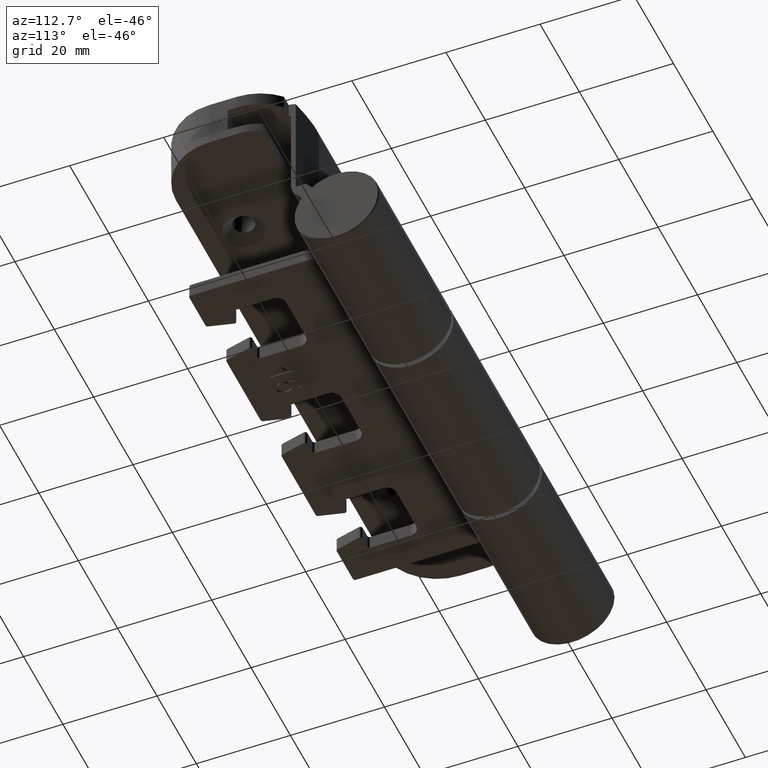
[diagram: clean part render]
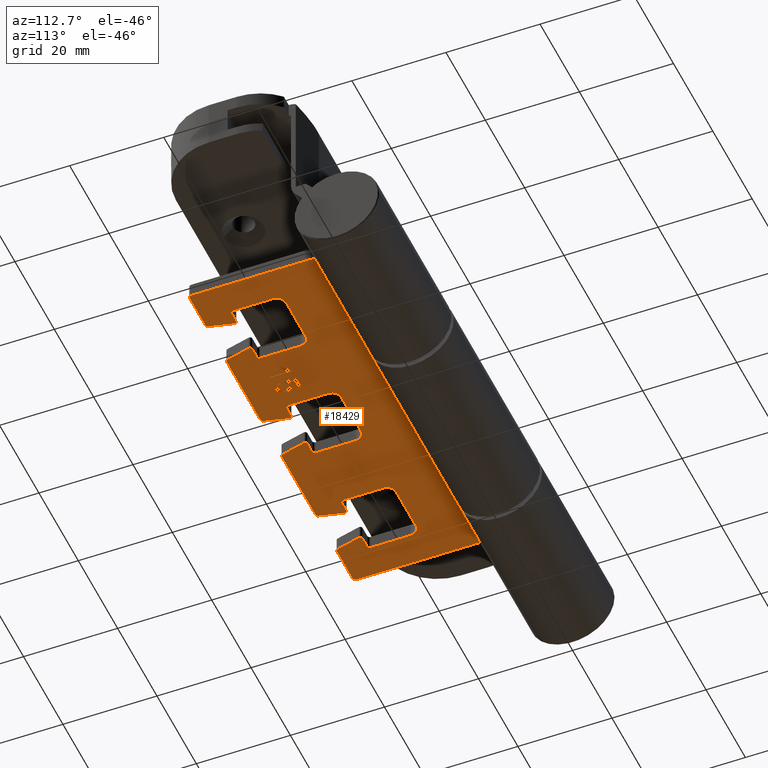
[diagram: same view with one face highlighted and labeled with its STEP entity id]
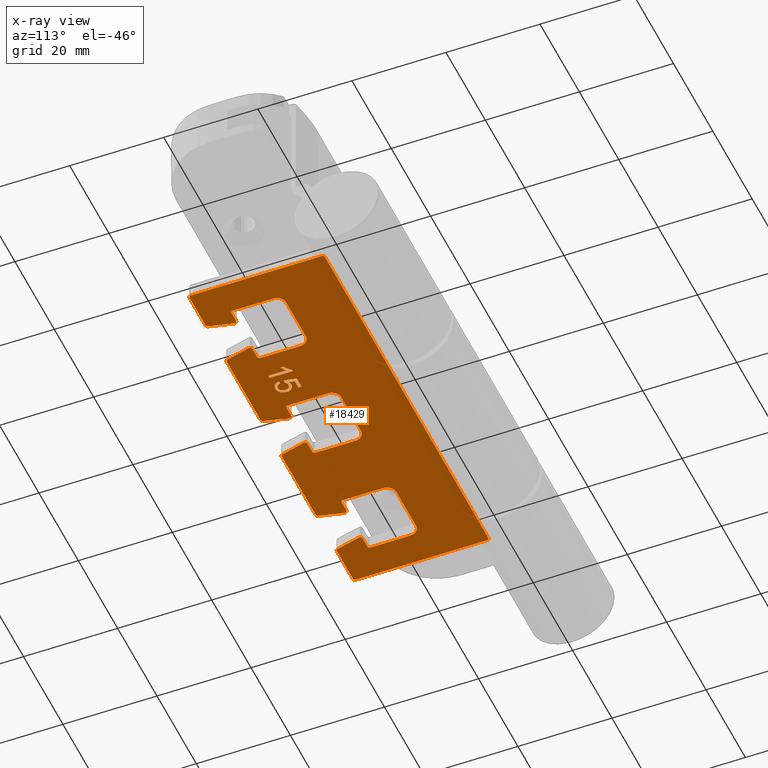
[diagram: x-ray of the same camera — body ghosted, the highlighted face saturated]
A machine part, auxiliary view. The second image highlights one B-rep face of the part: STEP entity #18429.
The next image is the same camera in x-ray: the body ghosted, the highlighted face saturated — about 9% of this face is hidden behind the body in this view.
In plain terms, the highlighted planar face has unit normal (-0, 0, -1).
Its self-contained STEP definition (entity closure, byte-faithful):
#16 = DIRECTION ( 'NONE',  ( 3.330669073875506106E-16, -1.645520264221267495E-30, -1.000000000000000000 ) ) ;
#81 = DIRECTION ( 'NONE',  ( 6.021711508592039734E-17, 1.000000000000000000, 1.613137984283720811E-30 ) ) ;
#97 = CIRCLE ( 'NONE', #8790, 2.000000000000001776 ) ;
#119 = CARTESIAN_POINT ( 'NONE',  ( -30.97893695662481761, -6.999999999999999112, -11.14997987979132077 ) ) ;
#131 = DIRECTION ( 'NONE',  ( -1.000000000000000000, 0.000000000000000000, 0.000000000000000000 ) ) ;
#169 = ORIENTED_EDGE ( 'NONE', *, *, #7456, .T. ) ;
#216 = LINE ( 'NONE', #9193, #3988 ) ;
#227 = EDGE_CURVE ( 'NONE', #5664, #19765, #3516, .T. ) ;
#285 = DIRECTION ( 'NONE',  ( -6.902532920683849794E-31, 1.000000000000000000, 1.645520264221267145E-30 ) ) ;
#301 = CARTESIAN_POINT ( 'NONE',  ( -31.11343962867249502, -6.999999999999999112, -10.47832277126347300 ) ) ;
#351 = FACE_BOUND ( 'NONE', #6723, .T. ) ;
#362 = EDGE_CURVE ( 'NONE', #3391, #8185, #7534, .T. ) ;
#370 = DIRECTION ( 'NONE',  ( -6.021711508592039734E-17, -1.000000000000000000, -1.613137984283720811E-30 ) ) ;
#374 = CARTESIAN_POINT ( 'NONE',  ( -10.69218558541689923, -6.999999999999995559, 42.00000000000000000 ) ) ;
#382 = CARTESIAN_POINT ( 'NONE',  ( -28.70512820512822216, -6.999999999999999112, -10.73076923076921219 ) ) ;
#393 = VECTOR ( 'NONE', #15632, 1000.000000000000000 ) ;
#422 = CIRCLE ( 'NONE', #12012, 1.999999999999998224 ) ;
#441 = CARTESIAN_POINT ( 'NONE',  ( -29.82175885136289750, -6.999999999999999112, -17.03028914929162596 ) ) ;
#442 = VECTOR ( 'NONE', #830, 1000.000000000000114 ) ;
#490 = ORIENTED_EDGE ( 'NONE', *, *, #11151, .T. ) ;
#538 = VERTEX_POINT ( 'NONE', #15820 ) ;
#549 = CARTESIAN_POINT ( 'NONE',  ( -32.50000000000002132, -6.999999999999999112, -6.499999999999984013 ) ) ;
#574 = DIRECTION ( 'NONE',  ( 6.021711508592039734E-17, 1.000000000000000000, 1.613137984283720811E-30 ) ) ;
#584 = CARTESIAN_POINT ( 'NONE',  ( -30.69230769230770761, -6.999999999999999112, -12.97435897435895846 ) ) ;
#585 = CARTESIAN_POINT ( 'NONE',  ( -23.99999999999999645, -6.999999999999999112, -22.99999999999997513 ) ) ;
#629 = VERTEX_POINT ( 'NONE', #18945 ) ;
#648 = DIRECTION ( 'NONE',  ( 0.000000000000000000, 0.000000000000000000, 1.000000000000000000 ) ) ;
#655 = ORIENTED_EDGE ( 'NONE', *, *, #8022, .T. ) ;
#731 = CARTESIAN_POINT ( 'NONE',  ( -30.69230769230770761, -6.999999999999999112, -12.97435897435895846 ) ) ;
#740 = VECTOR ( 'NONE', #10314, 1000.000000000000000 ) ;
#749 = DIRECTION ( 'NONE',  ( -1.000000000000000000, 0.000000000000000000, 0.000000000000000000 ) ) ;
#757 = EDGE_CURVE ( 'NONE', #1844, #14669, #8141, .T. ) ;
#761 = CARTESIAN_POINT ( 'NONE',  ( -33.00000000000001421, -6.999999999999999112, -4.140388203202189032 ) ) ;
#829 = DIRECTION ( 'NONE',  ( 3.330669073875505120E-16, -1.645520264221267145E-30, -1.000000000000000000 ) ) ;
#830 = DIRECTION ( 'NONE',  ( 0.09950371902099794386, -1.700981326882806705E-30, -0.9950371902099892640 ) ) ;
#841 = CARTESIAN_POINT ( 'NONE',  ( -32.47057936608320716, -6.999999999999999112, -13.39060331529400649 ) ) ;
#848 = CARTESIAN_POINT ( 'NONE',  ( -39.00000000000001421, -7.000000000000002665, -5.390388203202165940 ) ) ;
#854 = VERTEX_POINT ( 'NONE', #14999 ) ;
#879 = VERTEX_POINT ( 'NONE', #8831 ) ;
#932 = CARTESIAN_POINT ( 'NONE',  ( -32.35346654311189951, -6.999999999999999112, -13.46710373877462175 ) ) ;
#940 = CARTESIAN_POINT ( 'NONE',  ( -10.19218558541689212, -6.999999999999999112, 42.00000000000000000 ) ) ;
#944 = CARTESIAN_POINT ( 'NONE',  ( -39.00000000000003553, -7.000000000000002665, 33.00000000000002842 ) ) ;
#970 = DIRECTION ( 'NONE',  ( 1.000000000000000000, -6.902532920683849794E-31, -3.330669073875503641E-16 ) ) ;
#1013 = VERTEX_POINT ( 'NONE', #17213 ) ;
#1027 = EDGE_CURVE ( 'NONE', #16103, #7131, #8015, .T. ) ;
#1061 = EDGE_CURVE ( 'NONE', #10197, #11346, #13086, .T. ) ;
#1126 = CARTESIAN_POINT ( 'NONE',  ( -32.84875976700715228, -7.000000000000002665, -12.98016792496480143 ) ) ;
#1131 = DIRECTION ( 'NONE',  ( 1.000000000000000000, -6.021711508592166691E-17, -3.330669073875503641E-16 ) ) ;
#1132 = CARTESIAN_POINT ( 'NONE',  ( -30.01350678329112398, -7.000000000000006217, -11.00544532033786282 ) ) ;
#1190 = CARTESIAN_POINT ( 'NONE',  ( -32.48438914901623065, -6.999999999999999112, -12.21401810135373722 ) ) ;
#1193 = EDGE_CURVE ( 'NONE', #4530, #19572, #8512, .T. ) ;
#1215 = EDGE_CURVE ( 'NONE', #854, #629, #10021, .T. ) ;
#1348 = EDGE_CURVE ( 'NONE', #11346, #2965, #18084, .T. ) ;
#1396 = CIRCLE ( 'NONE', #12342, 0.5000000000000004441 ) ;
#1403 = AXIS2_PLACEMENT_3D ( 'NONE', #14826, #7245, #13394 ) ;
#1484 = CARTESIAN_POINT ( 'NONE',  ( -21.99999999999999645, -6.999999999999999112, -22.99999999999996803 ) ) ;
#1509 = LINE ( 'NONE', #7666, #6096 ) ;
#1523 = CARTESIAN_POINT ( 'NONE',  ( -30.24470424939990210, -7.000000000000002665, -12.07890063599212027 ) ) ;
#1553 = VECTOR ( 'NONE', #17703, 1000.000000000000114 ) ;
#1618 = VERTEX_POINT ( 'NONE', #6785 ) ;
#1658 = ORIENTED_EDGE ( 'NONE', *, *, #17589, .T. ) ;
#1661 = CARTESIAN_POINT ( 'NONE',  ( -33.00000000000000711, -6.999999999999999112, 21.50000000000001421 ) ) ;
#1666 = CARTESIAN_POINT ( 'NONE',  ( -38.99999999999999289, -7.000000000000002665, -41.49999999999995026 ) ) ;
#1673 = EDGE_CURVE ( 'NONE', #12849, #6817, #10104, .T. ) ;
#1712 = CARTESIAN_POINT ( 'NONE',  ( -28.70512820512821506, -6.999999999999999112, -12.57872596153844391 ) ) ;
#1727 = CARTESIAN_POINT ( 'NONE',  ( -31.08761256005971774, -6.999999999999999112, -11.12962077480178280 ) ) ;
#1739 = VERTEX_POINT ( 'NONE', #18446 ) ;
#1766 = VERTEX_POINT ( 'NONE', #9355 ) ;
#1781 = CARTESIAN_POINT ( 'NONE',  ( -32.91491661556337789, -7.000000000000006217, -11.40580112823830738 ) ) ;
#1788 = EDGE_CURVE ( 'NONE', #5664, #5357, #13711, .T. ) ;
#1816 = LINE ( 'NONE', #12508, #6541 ) ;
#1821 = ORIENTED_EDGE ( 'NONE', *, *, #8154, .T. ) ;
#1844 = VERTEX_POINT ( 'NONE', #4915 ) ;
#1845 = CARTESIAN_POINT ( 'NONE',  ( -29.74818269428124040, -7.000000000000002665, -12.39975888316808472 ) ) ;
#1904 = DIRECTION ( 'NONE',  ( -1.000000000000000000, 0.000000000000000000, 0.000000000000000000 ) ) ;
#1916 = VERTEX_POINT ( 'NONE', #3495 ) ;
#1944 = DIRECTION ( 'NONE',  ( -3.330669073875506106E-16, 1.645520264221267495E-30, 1.000000000000000000 ) ) ;
#1995 = CARTESIAN_POINT ( 'NONE',  ( -31.65384615384616396, -7.000000000000006217, -13.67948717948715931 ) ) ;
#1998 = DIRECTION ( 'NONE',  ( -3.330669073875506106E-16, 1.645520264221267495E-30, 1.000000000000000000 ) ) ;
#2043 = CARTESIAN_POINT ( 'NONE',  ( -29.66921810054526532, -6.999999999999999112, -12.05774451979281459 ) ) ;
#2058 = DIRECTION ( 'NONE',  ( -1.000000000000000000, 0.000000000000000000, 0.000000000000000000 ) ) ;
#2137 = CARTESIAN_POINT ( 'NONE',  ( -29.66666666666668206, -7.000000000000002665, -11.94170673076921751 ) ) ;
#2143 = CARTESIAN_POINT ( 'NONE',  ( -33.06301101071603910, -7.000000000000002665, -12.17980866830898812 ) ) ;
#2146 = DIRECTION ( 'NONE',  ( 3.330669073875506106E-16, -1.645520264221267495E-30, -1.000000000000000000 ) ) ;
#2163 = LINE ( 'NONE', #14399, #15066 ) ;
#2166 = VERTEX_POINT ( 'NONE', #12349 ) ;
#2170 = AXIS2_PLACEMENT_3D ( 'NONE', #14267, #14572, #12635 ) ;
#2186 = CARTESIAN_POINT ( 'NONE',  ( -39.00000000000003553, -7.000000000000002665, 41.50000000000002132 ) ) ;
#2250 = CARTESIAN_POINT ( 'NONE',  ( -33.49999999999998579, -6.999999999999999112, -32.14038820320218548 ) ) ;
#2309 = ORIENTED_EDGE ( 'NONE', *, *, #10554, .F. ) ;
#2348 = CARTESIAN_POINT ( 'NONE',  ( -39.00000000000001421, -7.000000000000002665, 5.000000000000022204 ) ) ;
#2376 = CARTESIAN_POINT ( 'NONE',  ( -10.19218558541684061, -6.999999999999999112, -41.49999999999997158 ) ) ;
#2381 = CARTESIAN_POINT ( 'NONE',  ( -38.50000000000000711, -7.000000000000006217, -22.60961179679775768 ) ) ;
#2382 = DIRECTION ( 'NONE',  ( -1.000000000000000000, 0.000000000000000000, 0.000000000000000000 ) ) ;
#2385 = ORIENTED_EDGE ( 'NONE', *, *, #4493, .T. ) ;
#2388 = DIRECTION ( 'NONE',  ( 1.000000000000000000, -6.902532920683851546E-31, -3.330669073875510050E-16 ) ) ;
#2397 = VERTEX_POINT ( 'NONE', #848 ) ;
#2398 = CARTESIAN_POINT ( 'NONE',  ( -10.69218558541686903, -7.000000000000002665, -41.50000000000000000 ) ) ;
#2432 = VECTOR ( 'NONE', #1944, 1000.000000000000000 ) ;
#2448 = DIRECTION ( 'NONE',  ( -6.902532920683849794E-31, 1.000000000000000000, 1.645520264221267145E-30 ) ) ;
#2452 = DIRECTION ( 'NONE',  ( -3.330669073875505120E-16, 1.645520264221267145E-30, 1.000000000000000000 ) ) ;
#2474 = CARTESIAN_POINT ( 'NONE',  ( -32.16921199995928760, -7.000000000000002665, -11.38228494697351145 ) ) ;
#2484 = LINE ( 'NONE', #11265, #8703 ) ;
#2511 = AXIS2_PLACEMENT_3D ( 'NONE', #13083, #16223, #2382 ) ;
#2514 = EDGE_CURVE ( 'NONE', #19676, #15426, #15035, .T. ) ;
#2561 = CARTESIAN_POINT ( 'NONE',  ( -32.50000000000000711, -6.999999999999999112, -34.99999999999997868 ) ) ;
#2570 = CARTESIAN_POINT ( 'NONE',  ( -31.32331730769232081, -6.999999999999999112, -11.11538461538459721 ) ) ;
#2577 = LINE ( 'NONE', #13087, #2762 ) ;
#2598 = CARTESIAN_POINT ( 'NONE',  ( -32.26253413349047605, -6.999999999999999112, -12.73935925944263836 ) ) ;
#2643 = CARTESIAN_POINT ( 'NONE',  ( -29.92066590491864275, -7.000000000000002665, -11.12101834534367839 ) ) ;
#2762 = VECTOR ( 'NONE', #9858, 1000.000000000000114 ) ;
#2782 = CARTESIAN_POINT ( 'NONE',  ( -31.61172578892048435, -7.000000000000006217, -10.49622929089949963 ) ) ;
#2812 = ORIENTED_EDGE ( 'NONE', *, *, #2514, .T. ) ;
#2819 = CIRCLE ( 'NONE', #9609, 0.5000000000000004441 ) ;
#2964 = DIRECTION ( 'NONE',  ( -3.330669073875506106E-16, 1.645520264221267495E-30, 1.000000000000000000 ) ) ;
#2965 = VERTEX_POINT ( 'NONE', #4230 ) ;
#2984 = VECTOR ( 'NONE', #11822, 1000.000000000000000 ) ;
#3032 = EDGE_CURVE ( 'NONE', #13238, #5643, #8276, .T. ) ;
#3071 = ORIENTED_EDGE ( 'NONE', *, *, #9495, .T. ) ;
#3088 = AXIS2_PLACEMENT_3D ( 'NONE', #4343, #16767, #10495 ) ;
#3104 = VECTOR ( 'NONE', #5180, 1000.000000000000000 ) ;
#3148 = CARTESIAN_POINT ( 'NONE',  ( -29.25000000000000711, -7.000000000000002665, -17.07692307692304468 ) ) ;
#3190 = CARTESIAN_POINT ( 'NONE',  ( -39.00000000000003553, -7.000000000000002665, 22.60961179679783228 ) ) ;
#3206 = VERTEX_POINT ( 'NONE', #13106 ) ;
#3209 = CARTESIAN_POINT ( 'NONE',  ( -38.62126781251819807, -6.999999999999999112, 23.09468304687048956 ) ) ;
#3248 = ORIENTED_EDGE ( 'NONE', *, *, #12112, .T. ) ;
#3269 = VERTEX_POINT ( 'NONE', #13491 ) ;
#3272 = CARTESIAN_POINT ( 'NONE',  ( -39.00000000000003553, -7.000000000000002665, 42.00000000000002132 ) ) ;
#3288 = CARTESIAN_POINT ( 'NONE',  ( -21.99999999999999289, -6.999999999999999112, -32.99999999999995737 ) ) ;
#3341 = VERTEX_POINT ( 'NONE', #4610 ) ;
#3356 = CIRCLE ( 'NONE', #12368, 1.999999999999998224 ) ;
#3358 = VERTEX_POINT ( 'NONE', #1484 ) ;
#3362 = CARTESIAN_POINT ( 'NONE',  ( -29.84094551282052521, -6.999999999999999112, -17.07692307692304468 ) ) ;
#3391 = VERTEX_POINT ( 'NONE', #3190 ) ;
#3408 = EDGE_CURVE ( 'NONE', #3358, #17753, #9453, .T. ) ;
#3439 = VERTEX_POINT ( 'NONE', #15822 ) ;
#3478 = DIRECTION ( 'NONE',  ( 6.021711508592165459E-17, 1.000000000000000000, 1.613137984283720461E-30 ) ) ;
#3495 = CARTESIAN_POINT ( 'NONE',  ( -33.50000000000001421, -7.000000000000002665, -3.640388203202186368 ) ) ;
#3512 = B_SPLINE_CURVE_WITH_KNOTS ( 'NONE', 3,
 ( #18649, #4818, #17045, #8042, #11069, #1781, #3593, #18745, #12576, #6641, #8147 ),
 .UNSPECIFIED., .F., .F.,
 ( 4, 1, 1, 1, 1, 1, 1, 1, 4 ),
 ( 0.000000000000000000, 0.1278926194654210480, 0.2515785135038584031, 0.3727928197023028245, 0.4927776986078535315, 0.6135900692425720893, 0.7378086492801454455, 0.8661799015391674628, 1.000000000000000000 ),
 .UNSPECIFIED. ) ;
#3516 = LINE ( 'NONE', #11384, #3644 ) ;
#3551 = VERTEX_POINT ( 'NONE', #2376 ) ;
#3593 = CARTESIAN_POINT ( 'NONE',  ( -32.98351903824498521, -6.999999999999999112, -11.57035669669233080 ) ) ;
#3644 = VECTOR ( 'NONE', #1998, 1000.000000000000000 ) ;
#3649 = AXIS2_PLACEMENT_3D ( 'NONE', #16305, #10030, #5398 ) ;
#3669 = CARTESIAN_POINT ( 'NONE',  ( -28.00000000000000711, -6.999999999999999112, -15.69471153846152234 ) ) ;
#3685 = DIRECTION ( 'NONE',  ( -1.000000000000000000, 0.000000000000000000, 0.000000000000000000 ) ) ;
#3696 = CARTESIAN_POINT ( 'NONE',  ( -33.62126781251817675, -7.000000000000006217, -24.34468304687043627 ) ) ;
#3725 = CARTESIAN_POINT ( 'NONE',  ( -31.28525641025641590, -6.999999999999999112, -10.47435897435895669 ) ) ;
#3752 = VERTEX_POINT ( 'NONE', #6507 ) ;
#3771 = LINE ( 'NONE', #5682, #10256 ) ;
#3869 = ORIENTED_EDGE ( 'NONE', *, *, #6004, .F. ) ;
#3903 = DIRECTION ( 'NONE',  ( 6.021711508592039734E-17, 1.000000000000000000, 1.613137984283720811E-30 ) ) ;
#3919 = CARTESIAN_POINT ( 'NONE',  ( -39.00000000000003553, -7.000000000000002665, 33.39038820320224943 ) ) ;
#3935 = CARTESIAN_POINT ( 'NONE',  ( -30.24796574974075014, -7.000000000000002665, -12.26474656507636318 ) ) ;
#3986 = CARTESIAN_POINT ( 'NONE',  ( -31.44983602334466966, -6.999999999999999112, -11.11729977022183746 ) ) ;
#3988 = VECTOR ( 'NONE', #10801, 1000.000000000000114 ) ;
#4066 = LINE ( 'NONE', #14582, #14275 ) ;
#4089 = CARTESIAN_POINT ( 'NONE',  ( -32.36526151962631559, -7.000000000000002665, -11.61205032363476874 ) ) ;
#4113 = B_SPLINE_CURVE_WITH_KNOTS ( 'NONE', 3,
 ( #16564, #18566, #5844, #4334, #13713, #8874, #10682, #4733, #5944, #18270, #16661 ),
 .UNSPECIFIED., .F., .F.,
 ( 4, 1, 1, 1, 1, 1, 1, 1, 4 ),
 ( 0.000000000000000000, 0.1426572507006144686, 0.2811689939054440313, 0.4169771923679749803, 0.5508524927475570987, 0.6783641702618110614, 0.7950324430070948578, 0.9019981783473517423, 1.000000000000000000 ),
 .UNSPECIFIED. ) ;
#4137 = CARTESIAN_POINT ( 'NONE',  ( -30.51024125653205843, -7.000000000000002665, -12.82729785831652869 ) ) ;
#4161 = CIRCLE ( 'NONE', #15466, 0.5000000000000004441 ) ;
#4201 = CARTESIAN_POINT ( 'NONE',  ( -38.50000000000000711, -7.000000000000006217, -33.39038820320217837 ) ) ;
#4230 = CARTESIAN_POINT ( 'NONE',  ( -32.50000000000002842, -6.999999999999999112, -6.999999999999984901 ) ) ;
#4240 = EDGE_CURVE ( 'NONE', #10424, #11802, #14438, .T. ) ;
#4264 = CARTESIAN_POINT ( 'NONE',  ( -30.23562158567390767, -7.000000000000006217, -10.79816520123474000 ) ) ;
#4295 = AXIS2_PLACEMENT_3D ( 'NONE', #19974, #17143, #7747 ) ;
#4312 = AXIS2_PLACEMENT_3D ( 'NONE', #18903, #5076, #131 ) ;
#4334 = CARTESIAN_POINT ( 'NONE',  ( -28.98701299261532327, -7.000000000000002665, -16.61589968163998066 ) ) ;
#4343 = CARTESIAN_POINT ( 'NONE',  ( -32.50000000000000711, -6.999999999999999112, 21.50000000000002487 ) ) ;
#4349 = VECTOR ( 'NONE', #12897, 1000.000000000000000 ) ;
#4351 = VERTEX_POINT ( 'NONE', #16250 ) ;
#4353 = VERTEX_POINT ( 'NONE', #19562 ) ;
#4354 = CARTESIAN_POINT ( 'NONE',  ( -30.24358974358975516, -7.000000000000002665, -12.11899038461536726 ) ) ;
#4362 = DIRECTION ( 'NONE',  ( 6.021711508592039734E-17, 1.000000000000000000, 1.613137984283720811E-30 ) ) ;
#4378 = CARTESIAN_POINT ( 'NONE',  ( -28.06410256410256920, -6.999999999999999112, -10.73076923076921751 ) ) ;
#4414 = LINE ( 'NONE', #5828, #17029 ) ;
#4419 = CARTESIAN_POINT ( 'NONE',  ( -31.89229419600756543, -7.000000000000002665, -12.96568611652896585 ) ) ;
#4421 = CIRCLE ( 'NONE', #7635, 0.5000000000000004441 ) ;
#4438 = DIRECTION ( 'NONE',  ( -0.9701425001453322094, 0.000000000000000000, -0.2425356250363315813 ) ) ;
#4462 = CARTESIAN_POINT ( 'NONE',  ( -31.28525641025641590, -6.999999999999999112, -10.47435897435895669 ) ) ;
#4493 = EDGE_CURVE ( 'NONE', #9266, #2166, #4414, .T. ) ;
#4511 = CARTESIAN_POINT ( 'NONE',  ( -38.62126781251819807, -6.999999999999999112, 32.90531695312957083 ) ) ;
#4530 = VERTEX_POINT ( 'NONE', #11260 ) ;
#4570 = CARTESIAN_POINT ( 'NONE',  ( -10.69218558541690101, -6.999999999999995559, 41.50000000000000000 ) ) ;
#4577 = VERTEX_POINT ( 'NONE', #6334 ) ;
#4610 = CARTESIAN_POINT ( 'NONE',  ( -30.62820512820513486, -7.000000000000006217, -13.61538461538460254 ) ) ;
#4632 = EDGE_CURVE ( 'NONE', #6817, #4353, #3512, .T. ) ;
#4722 = CARTESIAN_POINT ( 'NONE',  ( -38.50000000000001421, -6.999999999999999112, 5.390388203202230777 ) ) ;
#4733 = CARTESIAN_POINT ( 'NONE',  ( -28.33400128572749921, -7.000000000000002665, -15.90385719530127240 ) ) ;
#4789 = CARTESIAN_POINT ( 'NONE',  ( -33.00000000000000711, -6.999999999999999112, -34.99999999999997868 ) ) ;
#4818 = CARTESIAN_POINT ( 'NONE',  ( -32.50555888696052875, -6.999999999999999112, -10.89624771608633580 ) ) ;
#4846 = ORIENTED_EDGE ( 'NONE', *, *, #10664, .T. ) ;
#4856 = EDGE_CURVE ( 'NONE', #2397, #13878, #11203, .T. ) ;
#4874 = CARTESIAN_POINT ( 'NONE',  ( -29.66751956966086468, -7.000000000000002665, -11.98049628299987113 ) ) ;
#4899 = FACE_BOUND ( 'NONE', #7103, .T. ) ;
#4915 = CARTESIAN_POINT ( 'NONE',  ( -32.48717948717949611, -6.999999999999999112, -12.12199519230767564 ) ) ;
#4920 = VECTOR ( 'NONE', #8072, 1000.000000000000000 ) ;
#4922 = CIRCLE ( 'NONE', #16215, 0.5000000000000004441 ) ;
#4977 = DIRECTION ( 'NONE',  ( 3.330669073875506106E-16, -1.645520264221267495E-30, -1.000000000000000000 ) ) ;
#4979 = CARTESIAN_POINT ( 'NONE',  ( -29.92154506365982058, -6.999999999999999112, -12.72829698296014556 ) ) ;
#4999 = FACE_OUTER_BOUND ( 'NONE', #9738, .T. ) ;
#5050 = DIRECTION ( 'NONE',  ( 3.330669073875506106E-16, -1.645520264221267495E-30, -1.000000000000000000 ) ) ;
#5076 = DIRECTION ( 'NONE',  ( 6.021711508592039734E-17, 1.000000000000000000, 1.613137984283720811E-30 ) ) ;
#5093 = DIRECTION ( 'NONE',  ( -1.000000000000000000, 6.902532920683849794E-31, -1.208909515702943741E-15 ) ) ;
#5155 = ORIENTED_EDGE ( 'NONE', *, *, #12020, .T. ) ;
#5169 = DIRECTION ( 'NONE',  ( 6.021711508592039734E-17, 1.000000000000000000, 1.613137984283720811E-30 ) ) ;
#5180 = DIRECTION ( 'NONE',  ( -3.330669073875506106E-16, 1.645520264221267495E-30, 1.000000000000000000 ) ) ;
#5187 = EDGE_CURVE ( 'NONE', #16830, #15086, #13061, .T. ) ;
#5222 = AXIS2_PLACEMENT_3D ( 'NONE', #5827, #5169, #6886 ) ;
#5258 = EDGE_CURVE ( 'NONE', #5643, #18164, #3771, .T. ) ;
#5276 = CARTESIAN_POINT ( 'NONE',  ( -32.50000000000002842, -6.999999999999995559, 35.00000000000003553 ) ) ;
#5282 = CARTESIAN_POINT ( 'NONE',  ( -29.97366204291664005, -7.000000000000002665, -12.79776134443073410 ) ) ;
#5290 = CARTESIAN_POINT ( 'NONE',  ( -33.06087571318411733, -7.000000000000002665, -12.28506608961521174 ) ) ;
#5292 = CARTESIAN_POINT ( 'NONE',  ( -24.00000000000000711, -6.999999999999999112, -4.999999999999971578 ) ) ;
#5357 = VERTEX_POINT ( 'NONE', #12019 ) ;
#5398 = DIRECTION ( 'NONE',  ( -1.000000000000000000, 0.000000000000000000, 0.000000000000000000 ) ) ;
#5417 = CARTESIAN_POINT ( 'NONE',  ( -32.08664557018890662, -6.999999999999995559, -11.31917269289197314 ) ) ;
#5445 = DIRECTION ( 'NONE',  ( 6.021711508592039734E-17, 1.000000000000000000, 1.613137984283720811E-30 ) ) ;
#5447 = LINE ( 'NONE', #11581, #10273 ) ;
#5466 = CARTESIAN_POINT ( 'NONE',  ( -22.00000000000000000, -6.999999999999999112, -4.999999999999972466 ) ) ;
#5485 = LINE ( 'NONE', #10023, #9075 ) ;
#5508 = CARTESIAN_POINT ( 'NONE',  ( -31.79740964023131866, -7.000000000000006217, -11.18023929019309293 ) ) ;
#5520 = ORIENTED_EDGE ( 'NONE', *, *, #1348, .F. ) ;
#5526 = CIRCLE ( 'NONE', #19382, 0.5000000000000004441 ) ;
#5536 = EDGE_CURVE ( 'NONE', #8240, #4577, #16177, .T. ) ;
#5540 = CARTESIAN_POINT ( 'NONE',  ( -24.00000000000000711, -6.999999999999992006, 5.000000000000023093 ) ) ;
#5594 = CARTESIAN_POINT ( 'NONE',  ( -29.66666666666668206, -7.000000000000002665, -11.94170673076921751 ) ) ;
#5607 = CIRCLE ( 'NONE', #8520, 0.5000000000000004441 ) ;
#5643 = VERTEX_POINT ( 'NONE', #8685 ) ;
#5664 = VERTEX_POINT ( 'NONE', #11992 ) ;
#5672 = EDGE_CURVE ( 'NONE', #18468, #1618, #13102, .T. ) ;
#5682 = CARTESIAN_POINT ( 'NONE',  ( -39.00000000000003553, -7.000000000000002665, 42.00000000000002132 ) ) ;
#5683 = CARTESIAN_POINT ( 'NONE',  ( -29.69199526506522346, -6.999999999999999112, -11.64531886726035914 ) ) ;
#5751 = CARTESIAN_POINT ( 'NONE',  ( -30.36598869829022718, -7.000000000000006217, -12.63818437903134040 ) ) ;
#5774 = DIRECTION ( 'NONE',  ( 0.9701425001453322094, -8.874685183736379308E-31, -0.2425356250363320809 ) ) ;
#5776 = B_SPLINE_CURVE_WITH_KNOTS ( 'NONE', 3,
 ( #8778, #7265, #3935, #14846, #13321, #5751, #17965, #4137, #10290, #16463, #14951 ),
 .UNSPECIFIED., .F., .F.,
 ( 4, 1, 1, 1, 1, 1, 1, 1, 4 ),
 ( 0.000000000000000000, 0.1478549020862202357, 0.2845291557420108752, 0.4123882127837046330, 0.5342512702051510631, 0.6527027505475579972, 0.7686704671877426787, 0.8836561274517129583, 1.000000000000000000 ),
 .UNSPECIFIED. ) ;
#5783 = EDGE_CURVE ( 'NONE', #12205, #1618, #8252, .T. ) ;
#5788 = VERTEX_POINT ( 'NONE', #15256 ) ;
#5809 = VECTOR ( 'NONE', #17323, 1000.000000000000000 ) ;
#5826 = CARTESIAN_POINT ( 'NONE',  ( -32.45713141025641590, -6.999999999999999112, -10.85697115384613554 ) ) ;
#5827 = CARTESIAN_POINT ( 'NONE',  ( -33.50000000000000711, -7.000000000000002665, -4.140388203202187256 ) ) ;
#5828 = CARTESIAN_POINT ( 'NONE',  ( -33.00000000000001421, -6.999999999999999112, -15.28205128205126151 ) ) ;
#5831 = CARTESIAN_POINT ( 'NONE',  ( -32.20180367894440110, -6.999999999999999112, -12.79418280387557161 ) ) ;
#5844 = CARTESIAN_POINT ( 'NONE',  ( -29.12744069296009641, -7.000000000000002665, -16.83894476508463356 ) ) ;
#5868 = CARTESIAN_POINT ( 'NONE',  ( -30.35454368399291880, -7.000000000000002665, -11.59301957883758760 ) ) ;
#5882 = VERTEX_POINT ( 'NONE', #14718 ) ;
#5899 = EDGE_CURVE ( 'NONE', #3341, #6122, #2577, .T. ) ;
#5944 = CARTESIAN_POINT ( 'NONE',  ( -28.16953620733907471, -6.999999999999999112, -15.78376948478378594 ) ) ;
#5978 = EDGE_CURVE ( 'NONE', #18468, #9562, #7623, .T. ) ;
#5985 = ORIENTED_EDGE ( 'NONE', *, *, #1215, .F. ) ;
#6004 = EDGE_CURVE ( 'NONE', #5882, #17287, #8840, .T. ) ;
#6051 = CIRCLE ( 'NONE', #2170, 0.5000000000000004441 ) ;
#6079 = CARTESIAN_POINT ( 'NONE',  ( -28.00000000000000711, -6.999999999999999112, -15.28205128205126506 ) ) ;
#6096 = VECTOR ( 'NONE', #4438, 1000.000000000000114 ) ;
#6105 = CARTESIAN_POINT ( 'NONE',  ( -38.99999999999999289, -7.000000000000002665, -41.99999999999997868 ) ) ;
#6122 = VERTEX_POINT ( 'NONE', #8024 ) ;
#6181 = ORIENTED_EDGE ( 'NONE', *, *, #7705, .F. ) ;
#6186 = VERTEX_POINT ( 'NONE', #5594 ) ;
#6226 = CARTESIAN_POINT ( 'NONE',  ( -31.45030271842682978, -6.999999999999999112, -10.47770464994345652 ) ) ;
#6330 = VERTEX_POINT ( 'NONE', #19824 ) ;
#6333 = LINE ( 'NONE', #12877, #393 ) ;
#6334 = CARTESIAN_POINT ( 'NONE',  ( -31.58974358974359831, -6.999999999999999112, -13.03846153846151878 ) ) ;
#6355 = EDGE_CURVE ( 'NONE', #18164, #12383, #10201, .T. ) ;
#6365 = CARTESIAN_POINT ( 'NONE',  ( -30.63788725643253130, -7.000000000000002665, -10.57786148638415824 ) ) ;
#6373 = ORIENTED_EDGE ( 'NONE', *, *, #7026, .F. ) ;
#6400 = EDGE_CURVE ( 'NONE', #15086, #6186, #18132, .T. ) ;
#6401 = ORIENTED_EDGE ( 'NONE', *, *, #7759, .F. ) ;
#6409 = EDGE_CURVE ( 'NONE', #7036, #19729, #7904, .T. ) ;
#6507 = CARTESIAN_POINT ( 'NONE',  ( -29.10376602564103266, -7.000000000000002665, -15.92307692307689315 ) ) ;
#6530 = CIRCLE ( 'NONE', #5222, 0.5000000000000004441 ) ;
#6541 = VECTOR ( 'NONE', #9686, 1000.000000000000000 ) ;
#6544 = ORIENTED_EDGE ( 'NONE', *, *, #227, .F. ) ;
#6556 = DIRECTION ( 'NONE',  ( -6.021711508592039734E-17, -1.000000000000000000, -1.613137984283720811E-30 ) ) ;
#6573 = ORIENTED_EDGE ( 'NONE', *, *, #18931, .F. ) ;
#6574 = LINE ( 'NONE', #18777, #4920 ) ;
#6598 = CARTESIAN_POINT ( 'NONE',  ( -33.00000000000001421, -6.999999999999999112, -3.499999999999980904 ) ) ;
#6641 = CARTESIAN_POINT ( 'NONE',  ( -33.06265834993826758, -7.000000000000002665, -12.06076830647187670 ) ) ;
#6674 = VECTOR ( 'NONE', #2964, 1000.000000000000000 ) ;
#6683 = CARTESIAN_POINT ( 'NONE',  ( -23.99999999999999289, -6.999999999999999112, -32.99999999999997868 ) ) ;
#6707 = CARTESIAN_POINT ( 'NONE',  ( -33.06410256410257631, -6.999999999999995559, -12.12600160256408621 ) ) ;
#6723 = EDGE_LOOP ( 'NONE', ( #10616, #17843, #2385, #15288, #16683, #9599, #655 ) ) ;
#6728 = CARTESIAN_POINT ( 'NONE',  ( -33.00000000000002132, -6.999999999999999112, -6.499999999999982236 ) ) ;
#6744 = VERTEX_POINT ( 'NONE', #11660 ) ;
#6745 = CARTESIAN_POINT ( 'NONE',  ( -33.00000000000001421, -6.999999999999999112, -15.92307692307690026 ) ) ;
#6754 = CARTESIAN_POINT ( 'NONE',  ( -28.06410256410256920, -6.999999999999999112, -10.73076923076921751 ) ) ;
#6785 = CARTESIAN_POINT ( 'NONE',  ( -32.50000000000000711, -6.999999999999999112, 21.00000000000002487 ) ) ;
#6817 = VERTEX_POINT ( 'NONE', #13882 ) ;
#6886 = DIRECTION ( 'NONE',  ( -1.000000000000000000, 0.000000000000000000, 0.000000000000000000 ) ) ;
#6929 = ORIENTED_EDGE ( 'NONE', *, *, #17720, .T. ) ;
#6930 = CARTESIAN_POINT ( 'NONE',  ( -32.44411320137184163, -7.000000000000002665, -11.79851182227408657 ) ) ;
#6967 = AXIS2_PLACEMENT_3D ( 'NONE', #5292, #2448, #17600 ) ;
#6999 = CARTESIAN_POINT ( 'NONE',  ( -32.91657017125446316, -7.000000000000002665, -12.85685761654241688 ) ) ;
#7007 = CARTESIAN_POINT ( 'NONE',  ( -33.00000000000002132, -6.999999999999999112, 4.140388203202231665 ) ) ;
#7026 = EDGE_CURVE ( 'NONE', #1739, #10894, #2163, .T. ) ;
#7028 = CARTESIAN_POINT ( 'NONE',  ( -31.99652079988488040, -7.000000000000002665, -11.26470207285920466 ) ) ;
#7033 = CARTESIAN_POINT ( 'NONE',  ( -10.69218558541687081, -7.000000000000002665, -42.00000000000000000 ) ) ;
#7036 = VERTEX_POINT ( 'NONE', #6728 ) ;
#7047 = EDGE_CURVE ( 'NONE', #3439, #10621, #4421, .T. ) ;
#7085 = ORIENTED_EDGE ( 'NONE', *, *, #17773, .T. ) ;
#7096 = CARTESIAN_POINT ( 'NONE',  ( -28.70512820512821506, -6.999999999999999112, -12.57872596153844391 ) ) ;
#7103 = EDGE_LOOP ( 'NONE', ( #12846, #17307, #16898, #18908, #9842, #8751, #7108, #17498, #16391, #9900, #13032, #12625, #19359, #14358, #7085, #9225 ) ) ;
#7108 = ORIENTED_EDGE ( 'NONE', *, *, #9218, .T. ) ;
#7131 = VERTEX_POINT ( 'NONE', #2561 ) ;
#7150 = ORIENTED_EDGE ( 'NONE', *, *, #17900, .T. ) ;
#7211 = EDGE_CURVE ( 'NONE', #19676, #8185, #16416, .T. ) ;
#7241 = CARTESIAN_POINT ( 'NONE',  ( -23.99999999999998934, -6.999999999999999112, -34.99999999999998579 ) ) ;
#7245 = DIRECTION ( 'NONE',  ( 6.021711508592039734E-17, 1.000000000000000000, 1.613137984283720811E-30 ) ) ;
#7265 = CARTESIAN_POINT ( 'NONE',  ( -30.24508613076979557, -7.000000000000002665, -12.16883210611353583 ) ) ;
#7287 = VECTOR ( 'NONE', #11605, 1000.000000000000227 ) ;
#7330 = AXIS2_PLACEMENT_3D ( 'NONE', #19074, #5445, #11580 ) ;
#7347 = ORIENTED_EDGE ( 'NONE', *, *, #14445, .F. ) ;
#7348 = CARTESIAN_POINT ( 'NONE',  ( -32.40052234220329552, -7.000000000000002665, -12.54289416502436083 ) ) ;
#7371 = ORIENTED_EDGE ( 'NONE', *, *, #4856, .T. ) ;
#7391 = CARTESIAN_POINT ( 'NONE',  ( -24.00000000000000711, -6.999999999999999112, -6.999999999999973355 ) ) ;
#7425 = CARTESIAN_POINT ( 'NONE',  ( -24.00000000000001776, -6.999999999999999112, 23.00000000000003197 ) ) ;
#7456 = EDGE_CURVE ( 'NONE', #12429, #19765, #6051, .T. ) ;
#7509 = LINE ( 'NONE', #18109, #16423 ) ;
#7534 = CIRCLE ( 'NONE', #1403, 0.5000000000000004441 ) ;
#7557 = CARTESIAN_POINT ( 'NONE',  ( -24.00000000000002487, -6.999999999999992006, 35.00000000000001421 ) ) ;
#7580 = CARTESIAN_POINT ( 'NONE',  ( -31.28255715871700104, -6.999999999999999112, -11.11612048247084772 ) ) ;
#7623 = LINE ( 'NONE', #18428, #6674 ) ;
#7635 = AXIS2_PLACEMENT_3D ( 'NONE', #11348, #17525, #3685 ) ;
#7666 = CARTESIAN_POINT ( 'NONE',  ( -39.00000000000001421, -7.000000000000006217, -4.999999999999973355 ) ) ;
#7669 = ORIENTED_EDGE ( 'NONE', *, *, #12398, .T. ) ;
#7694 = EDGE_CURVE ( 'NONE', #14669, #15741, #11331, .T. ) ;
#7699 = ORIENTED_EDGE ( 'NONE', *, *, #13768, .F. ) ;
#7705 = EDGE_CURVE ( 'NONE', #3391, #6744, #13836, .T. ) ;
#7722 = LINE ( 'NONE', #10945, #5809 ) ;
#7747 = DIRECTION ( 'NONE',  ( -1.000000000000000000, 0.000000000000000000, 0.000000000000000000 ) ) ;
#7759 = EDGE_CURVE ( 'NONE', #17753, #16103, #14131, .T. ) ;
#7825 = VECTOR ( 'NONE', #2388, 1000.000000000000000 ) ;
#7904 = LINE ( 'NONE', #6598, #3104 ) ;
#7960 = CARTESIAN_POINT ( 'NONE',  ( -32.50000000000000711, -6.999999999999995559, -34.49999999999997158 ) ) ;
#8015 = LINE ( 'NONE', #4789, #13397 ) ;
#8022 = EDGE_CURVE ( 'NONE', #18845, #9788, #4113, .T. ) ;
#8024 = CARTESIAN_POINT ( 'NONE',  ( -28.06410256410256920, -6.999999999999999112, -13.10256410256408977 ) ) ;
#8042 = CARTESIAN_POINT ( 'NONE',  ( -32.72446536705297149, -7.000000000000002665, -11.10728588093942015 ) ) ;
#8072 = DIRECTION ( 'NONE',  ( -3.330669073875506106E-16, 1.645520264221267495E-30, 1.000000000000000000 ) ) ;
#8141 = B_SPLINE_CURVE_WITH_KNOTS ( 'NONE', 3,
 ( #11554, #14602, #16025, #8537, #6930, #13077, #4089, #19252, #9849, #2474, #5417, #7028, #19346, #5508, #11644, #17818, #3986, #10150, #2570 ),
 .UNSPECIFIED., .F., .F.,
 ( 4, 1, 1, 1, 1, 1, 1, 1, 1, 1, 1, 1, 1, 1, 1, 1, 4 ),
 ( 0.000000000000000000, 0.06580103760947253466, 0.1286767959489732716, 0.1886758749524335699, 0.2475984367338941727, 0.3048494201188282626, 0.3617858992828984488, 0.4195227063685899038, 0.4786818154207392872, 0.5387695030440194932, 0.5987990560131536411, 0.6601842815006805365, 0.7229515306109683959, 0.7879926891048759652, 0.8554037684344736325, 0.9261530612840045418, 1.000000000000000000 ),
 .UNSPECIFIED. ) ;
#8147 = CARTESIAN_POINT ( 'NONE',  ( -33.06410256410257631, -6.999999999999995559, -12.12600160256408621 ) ) ;
#8154 = EDGE_CURVE ( 'NONE', #1013, #7131, #2819, .T. ) ;
#8176 = DIRECTION ( 'NONE',  ( 0.000000000000000000, 0.000000000000000000, 1.000000000000000000 ) ) ;
#8182 = CIRCLE ( 'NONE', #4295, 0.5000000000000004441 ) ;
#8185 = VERTEX_POINT ( 'NONE', #3209 ) ;
#8210 = CARTESIAN_POINT ( 'NONE',  ( -29.68640152829889800, -7.000000000000002665, -12.17296478569370066 ) ) ;
#8240 = VERTEX_POINT ( 'NONE', #1995 ) ;
#8252 = LINE ( 'NONE', #14415, #18264 ) ;
#8276 = CIRCLE ( 'NONE', #8911, 0.5000000000000004441 ) ;
#8320 = LINE ( 'NONE', #11436, #2984 ) ;
#8324 = ORIENTED_EDGE ( 'NONE', *, *, #5258, .T. ) ;
#8336 = ORIENTED_EDGE ( 'NONE', *, *, #7211, .F. ) ;
#8436 = DIRECTION ( 'NONE',  ( 6.021711508592039734E-17, 1.000000000000000000, 1.613137984283720811E-30 ) ) ;
#8458 = DIRECTION ( 'NONE',  ( -1.000000000000000000, 0.000000000000000000, 0.000000000000000000 ) ) ;
#8493 = VECTOR ( 'NONE', #13045, 1000.000000000000000 ) ;
#8510 = CIRCLE ( 'NONE', #4312, 0.5000000000000004441 ) ;
#8511 = CARTESIAN_POINT ( 'NONE',  ( -32.58043427380253121, -7.000000000000002665, -13.30361382387375713 ) ) ;
#8512 = LINE ( 'NONE', #12956, #14354 ) ;
#8520 = AXIS2_PLACEMENT_3D ( 'NONE', #4201, #3903, #13096 ) ;
#8533 = VERTEX_POINT ( 'NONE', #10830 ) ;
#8537 = CARTESIAN_POINT ( 'NONE',  ( -32.46922698408326369, -6.999999999999999112, -11.90092868772461188 ) ) ;
#8542 = CARTESIAN_POINT ( 'NONE',  ( -38.62126781251816965, -6.999999999999999112, -23.09468304687043272 ) ) ;
#8557 = DIRECTION ( 'NONE',  ( 6.021711508592039734E-17, 1.000000000000000000, 1.613137984283720811E-30 ) ) ;
#8607 = CARTESIAN_POINT ( 'NONE',  ( -32.77022788697566824, -7.000000000000002665, -13.09643617502578294 ) ) ;
#8611 = EDGE_CURVE ( 'NONE', #3551, #3206, #15793, .T. ) ;
#8637 = EDGE_CURVE ( 'NONE', #4353, #8240, #11291, .T. ) ;
#8640 = DIRECTION ( 'NONE',  ( -1.000000000000000000, 0.000000000000000000, 0.000000000000000000 ) ) ;
#8685 = CARTESIAN_POINT ( 'NONE',  ( -38.50000000000003553, -7.000000000000006217, 42.00000000000002132 ) ) ;
#8703 = VECTOR ( 'NONE', #970, 1000.000000000000000 ) ;
#8710 = CARTESIAN_POINT ( 'NONE',  ( -29.67059409874662990, -7.000000000000002665, -11.79180907282420065 ) ) ;
#8722 = CARTESIAN_POINT ( 'NONE',  ( -39.00000000000003553, -7.000000000000002665, 23.00000000000003553 ) ) ;
#8751 = ORIENTED_EDGE ( 'NONE', *, *, #7694, .T. ) ;
#8760 = CARTESIAN_POINT ( 'NONE',  ( -32.48623748056411387, -6.999999999999999112, -12.15306174554132390 ) ) ;
#8778 = CARTESIAN_POINT ( 'NONE',  ( -30.24358974358975516, -7.000000000000002665, -12.11899038461536726 ) ) ;
#8790 = AXIS2_PLACEMENT_3D ( 'NONE', #12962, #19326, #648 ) ;
#8808 = CARTESIAN_POINT ( 'NONE',  ( -29.72832502633366047, -7.000000000000006217, -11.50524940771695448 ) ) ;
#8831 = CARTESIAN_POINT ( 'NONE',  ( -39.00000000000000711, -7.000000000000002665, -22.60961179679772570 ) ) ;
#8840 = LINE ( 'NONE', #6105, #17318 ) ;
#8874 = CARTESIAN_POINT ( 'NONE',  ( -28.67078617263532081, -6.999999999999999112, -16.21768216894414039 ) ) ;
#8911 = AXIS2_PLACEMENT_3D ( 'NONE', #11090, #9577, #1904 ) ;
#8924 = ORIENTED_EDGE ( 'NONE', *, *, #362, .T. ) ;
#9058 = CIRCLE ( 'NONE', #10993, 0.5000000000000004441 ) ;
#9075 = VECTOR ( 'NONE', #16096, 999.9999999999998863 ) ;
#9144 = ORIENTED_EDGE ( 'NONE', *, *, #1788, .T. ) ;
#9163 = CARTESIAN_POINT ( 'NONE',  ( -32.36116278065087215, -6.999999999999999112, -12.61308309190747678 ) ) ;
#9193 = CARTESIAN_POINT ( 'NONE',  ( -39.00000000000000711, -7.000000000000002665, -32.99999999999996447 ) ) ;
#9199 = CARTESIAN_POINT ( 'NONE',  ( -30.24687425463096346, -7.000000000000002665, -12.00084365016701682 ) ) ;
#9216 = DIRECTION ( 'NONE',  ( -1.000000000000000000, 0.000000000000000000, 0.000000000000000000 ) ) ;
#9218 = EDGE_CURVE ( 'NONE', #15741, #13219, #5776, .T. ) ;
#9225 = ORIENTED_EDGE ( 'NONE', *, *, #1673, .T. ) ;
#9266 = VERTEX_POINT ( 'NONE', #18471 ) ;
#9355 = CARTESIAN_POINT ( 'NONE',  ( -22.00000000000000711, -6.999999999999999112, 5.000000000000023093 ) ) ;
#9394 = CARTESIAN_POINT ( 'NONE',  ( -31.20318769531269965, -7.000000000000006217, -11.11755338635468604 ) ) ;
#9441 = AXIS2_PLACEMENT_3D ( 'NONE', #14876, #16198, #749 ) ;
#9453 = LINE ( 'NONE', #3288, #15719 ) ;
#9463 = DIRECTION ( 'NONE',  ( -1.000000000000000000, 0.000000000000000000, 0.000000000000000000 ) ) ;
#9466 = DIRECTION ( 'NONE',  ( 0.000000000000000000, 0.000000000000000000, 1.000000000000000000 ) ) ;
#9495 = EDGE_CURVE ( 'NONE', #3551, #17287, #5526, .T. ) ;
#9562 = VERTEX_POINT ( 'NONE', #10656 ) ;
#9577 = DIRECTION ( 'NONE',  ( 6.021711508592039734E-17, 1.000000000000000000, 1.613137984283720811E-30 ) ) ;
#9599 = ORIENTED_EDGE ( 'NONE', *, *, #14049, .T. ) ;
#9609 = AXIS2_PLACEMENT_3D ( 'NONE', #7960, #6556, #18866 ) ;
#9615 = CARTESIAN_POINT ( 'NONE',  ( -29.84094551282052521, -6.999999999999999112, -17.07692307692304468 ) ) ;
#9617 = CARTESIAN_POINT ( 'NONE',  ( -30.00020032051282826, -7.000000000000002665, -12.83313301282049679 ) ) ;
#9622 = CARTESIAN_POINT ( 'NONE',  ( -29.42380592409583784, -7.000000000000006217, -16.31101300752237293 ) ) ;
#9638 = DIRECTION ( 'NONE',  ( -1.000000000000000000, 6.021711508592165459E-17, 3.330669073875503641E-16 ) ) ;
#9686 = DIRECTION ( 'NONE',  ( -3.330669073875506106E-16, 1.645520264221267495E-30, 1.000000000000000000 ) ) ;
#9738 = EDGE_LOOP ( 'NONE', ( #8324, #12028, #7150, #6929, #10871, #3071, #3869, #7669, #19409, #14221, #7347, #1658, #13508, #1821, #17862, #6401, #11106, #7699, #6373, #10015, #15243, #17127, #10683, #4846, #19895, #7371, #19526, #490, #10321, #12337, #19907, #5520, #10632, #2309, #14709, #12534, #18157, #19725, #3248, #5985, #5155, #6181, #8924, #8336, #2812, #19067, #16924, #15541, #12418, #17691, #6573, #9818, #15635, #169, #6544, #9144, #18560, #15385, #18741, #17876 ) ) ;
#9753 = EDGE_CURVE ( 'NONE', #17300, #10621, #5485, .T. ) ;
#9788 = VERTEX_POINT ( 'NONE', #3669 ) ;
#9818 = ORIENTED_EDGE ( 'NONE', *, *, #11173, .F. ) ;
#9842 = ORIENTED_EDGE ( 'NONE', *, *, #757, .T. ) ;
#9849 = CARTESIAN_POINT ( 'NONE',  ( -32.24505376507865151, -6.999999999999999112, -11.45161766620974397 ) ) ;
#9858 = DIRECTION ( 'NONE',  ( 0.9805806756909202226, -4.930380657631322908E-31, 0.1961161351381834339 ) ) ;
#9900 = ORIENTED_EDGE ( 'NONE', *, *, #11145, .T. ) ;
#9907 = CARTESIAN_POINT ( 'NONE',  ( -38.62126781251816965, -6.999999999999999112, -32.90531695312950689 ) ) ;
#9917 = LINE ( 'NONE', #9615, #8493 ) ;
#9925 = CARTESIAN_POINT ( 'NONE',  ( -32.97027161838060039, -6.999999999999999112, -12.72486668410509658 ) ) ;
#9943 = CARTESIAN_POINT ( 'NONE',  ( -33.50000000000002842, -7.000000000000002665, 23.85961179679781097 ) ) ;
#10011 = LINE ( 'NONE', #17684, #16798 ) ;
#10015 = ORIENTED_EDGE ( 'NONE', *, *, #10534, .T. ) ;
#10021 = LINE ( 'NONE', #2348, #16617 ) ;
#10023 = CARTESIAN_POINT ( 'NONE',  ( -39.00000000000000711, -7.000000000000002665, -22.99999999999997158 ) ) ;
#10030 = DIRECTION ( 'NONE',  ( 6.021711508592039734E-17, 1.000000000000000000, 1.613137984283720811E-30 ) ) ;
#10104 = B_SPLINE_CURVE_WITH_KNOTS ( 'NONE', 3,
 ( #13796, #16737, #6226, #2782, #18353, #16644, #15526, #12264, #15432, #10767, #5826 ),
 .UNSPECIFIED., .F., .F.,
 ( 4, 1, 1, 1, 1, 1, 1, 1, 4 ),
 ( 0.000000000000000000, 0.1324702944791600889, 0.2616666311771870812, 0.3875720710229662580, 0.5110290449571821547, 0.6326513119273601271, 0.7546442917994753419, 0.8765146957733891409, 0.9999999999999998890 ),
 .UNSPECIFIED. ) ;
#10150 = CARTESIAN_POINT ( 'NONE',  ( -31.36608824820359587, -6.999999999999999112, -11.11603205298457198 ) ) ;
#10197 = VERTEX_POINT ( 'NONE', #5466 ) ;
#10201 = CIRCLE ( 'NONE', #14739, 0.5000000000000004441 ) ;
#10243 = EDGE_CURVE ( 'NONE', #1916, #19729, #6530, .T. ) ;
#10256 = VECTOR ( 'NONE', #1131, 1000.000000000000000 ) ;
#10273 = VECTOR ( 'NONE', #18254, 1000.000000000000000 ) ;
#10275 = CARTESIAN_POINT ( 'NONE',  ( -32.06112363942174426, -6.999999999999999112, -12.89054501359466620 ) ) ;
#10290 = CARTESIAN_POINT ( 'NONE',  ( -30.59565812191142342, -7.000000000000006217, -12.90790451793924731 ) ) ;
#10298 = VECTOR ( 'NONE', #19617, 1000.000000000000000 ) ;
#10313 = VECTOR ( 'NONE', #5050, 1000.000000000000000 ) ;
#10314 = DIRECTION ( 'NONE',  ( -1.000000000000000000, 6.902532920683849794E-31, -1.208909515702943741E-15 ) ) ;
#10321 = ORIENTED_EDGE ( 'NONE', *, *, #10243, .T. ) ;
#10380 = CARTESIAN_POINT ( 'NONE',  ( -30.24358974358975516, -7.000000000000002665, -12.11899038461536726 ) ) ;
#10423 = CARTESIAN_POINT ( 'NONE',  ( -30.36143851533697102, -7.000000000000002665, -10.71157451280751971 ) ) ;
#10424 = VERTEX_POINT ( 'NONE', #4511 ) ;
#10495 = DIRECTION ( 'NONE',  ( -1.000000000000000000, 0.000000000000000000, -2.081668171172166620E-14 ) ) ;
#10506 = CARTESIAN_POINT ( 'NONE',  ( -39.00000000000003553, -7.000000000000002665, 42.00000000000002132 ) ) ;
#10509 = CARTESIAN_POINT ( 'NONE',  ( -31.70573262705106288, -7.000000000000006217, -13.67372556177688203 ) ) ;
#10534 = EDGE_CURVE ( 'NONE', #1739, #13565, #15226, .T. ) ;
#10554 = EDGE_CURVE ( 'NONE', #1766, #10197, #6333, .T. ) ;
#10604 = CARTESIAN_POINT ( 'NONE',  ( -30.25925233199934539, -7.000000000000006217, -11.88733330290851598 ) ) ;
#10615 = CARTESIAN_POINT ( 'NONE',  ( -30.78861806530201051, -6.999999999999999112, -10.53154803075108248 ) ) ;
#10616 = ORIENTED_EDGE ( 'NONE', *, *, #10803, .T. ) ;
#10621 = VERTEX_POINT ( 'NONE', #3696 ) ;
#10632 = ORIENTED_EDGE ( 'NONE', *, *, #1061, .F. ) ;
#10656 = CARTESIAN_POINT ( 'NONE',  ( -33.00000000000002842, -6.999999999999992006, 23.85961179679781097 ) ) ;
#10664 = EDGE_CURVE ( 'NONE', #17300, #879, #14599, .T. ) ;
#10682 = CARTESIAN_POINT ( 'NONE',  ( -28.50315137806035892, -6.999999999999995559, -16.04737636740170004 ) ) ;
#10683 = ORIENTED_EDGE ( 'NONE', *, *, #9753, .F. ) ;
#10708 = CARTESIAN_POINT ( 'NONE',  ( -30.53201698947347964, -7.000000000000006217, -11.36715265043242873 ) ) ;
#10767 = CARTESIAN_POINT ( 'NONE',  ( -32.41564850834883060, -6.999999999999999112, -10.82604683102626630 ) ) ;
#10801 = DIRECTION ( 'NONE',  ( -0.9701425001453322094, 0.000000000000000000, -0.2425356250363315813 ) ) ;
#10803 = EDGE_CURVE ( 'NONE', #9788, #3269, #16222, .T. ) ;
#10830 = CARTESIAN_POINT ( 'NONE',  ( -10.19218558541594000, -6.999999999999999112, 22.96574496397925458 ) ) ;
#10871 = ORIENTED_EDGE ( 'NONE', *, *, #8611, .F. ) ;
#10894 = VERTEX_POINT ( 'NONE', #12350 ) ;
#10905 = CARTESIAN_POINT ( 'NONE',  ( -31.32331730769232081, -6.999999999999999112, -11.11538461538459721 ) ) ;
#10928 = CARTESIAN_POINT ( 'NONE',  ( -29.13935818406227796, -7.000000000000002665, -15.95998935160053378 ) ) ;
#10945 = CARTESIAN_POINT ( 'NONE',  ( -28.70512820512822216, -6.999999999999999112, -10.73076923076921219 ) ) ;
#10949 = CARTESIAN_POINT ( 'NONE',  ( -33.62126781251819807, -6.999999999999999112, 24.34468304687047890 ) ) ;
#10963 = CARTESIAN_POINT ( 'NONE',  ( -33.50000000000002842, -6.999999999999999112, 32.14038820320224232 ) ) ;
#10993 = AXIS2_PLACEMENT_3D ( 'NONE', #9943, #14398, #12864 ) ;
#11024 = EDGE_CURVE ( 'NONE', #7036, #2965, #4922, .T. ) ;
#11048 = PLANE ( 'NONE',  #12914 ) ;
#11069 = CARTESIAN_POINT ( 'NONE',  ( -32.82954611952100521, -7.000000000000002665, -11.25109799892929807 ) ) ;
#11090 = CARTESIAN_POINT ( 'NONE',  ( -38.50000000000003553, -7.000000000000006217, 41.50000000000002132 ) ) ;
#11106 = ORIENTED_EDGE ( 'NONE', *, *, #3408, .F. ) ;
#11145 = EDGE_CURVE ( 'NONE', #6122, #15559, #4066, .T. ) ;
#11151 = EDGE_CURVE ( 'NONE', #5788, #1916, #14916, .T. ) ;
#11173 = EDGE_CURVE ( 'NONE', #15816, #4351, #97, .T. ) ;
#11203 = CIRCLE ( 'NONE', #2511, 0.5000000000000004441 ) ;
#11218 = EDGE_CURVE ( 'NONE', #12429, #15816, #8320, .T. ) ;
#11260 = CARTESIAN_POINT ( 'NONE',  ( -39.00000000000000711, -7.000000000000002665, -33.39038820320215706 ) ) ;
#11265 = CARTESIAN_POINT ( 'NONE',  ( -33.00000000000001421, -6.999999999999999112, 7.000000000000027534 ) ) ;
#11291 = B_SPLINE_CURVE_WITH_KNOTS ( 'NONE', 3,
 ( #6707, #2143, #5290, #12955, #19121, #9925, #6999, #1126, #8607, #14971, #8511, #841, #932, #18083, #11816, #13534, #11910, #10509, #11718 ),
 .UNSPECIFIED., .F., .F.,
 ( 4, 1, 1, 1, 1, 1, 1, 1, 1, 1, 1, 1, 1, 1, 1, 1, 4 ),
 ( 0.000000000000000000, 0.06930902822520003392, 0.1355823716314874805, 0.1997026640843811429, 0.2617577999381243137, 0.3227131697758963691, 0.3829677307200975434, 0.4427458782340114030, 0.5032242351582930651, 0.5637591760962208376, 0.6237551854227411097, 0.6834140228899445724, 0.7438433995616672290, 0.8050351253690198883, 0.8676277251230714027, 0.9327674091588865624, 0.9999999999999998890 ),
 .UNSPECIFIED. ) ;
#11331 = B_SPLINE_CURVE_WITH_KNOTS ( 'NONE', 3,
 ( #10905, #7580, #9394, #1727, #119, #12007, #13532, #18392, #12414, #10708, #15468, #13939, #5868, #16883, #18590, #10604, #9199, #1523, #4354 ),
 .UNSPECIFIED., .F., .F.,
 ( 4, 1, 1, 1, 1, 1, 1, 1, 1, 1, 1, 1, 1, 1, 1, 1, 4 ),
 ( 0.000000000000000000, 0.07286593345653762099, 0.1418868719641279974, 0.2074526264147125154, 0.2704376800000988790, 0.3316408722476713589, 0.3901075774931586637, 0.4480692869488371866, 0.5055029519245388681, 0.5624881528337245529, 0.6190843288847304171, 0.6764155306922398081, 0.7354523604507930967, 0.7962407694486794973, 0.8604056780892038736, 0.9283049272851061628, 1.000000000000000000 ),
 .UNSPECIFIED. ) ;
#11346 = VERTEX_POINT ( 'NONE', #7391 ) ;
#11348 = CARTESIAN_POINT ( 'NONE',  ( -33.50000000000000711, -7.000000000000002665, -23.85961179679776833 ) ) ;
#11384 = CARTESIAN_POINT ( 'NONE',  ( -33.00000000000003553, -6.999999999999992006, 31.50000000000003553 ) ) ;
#11436 = CARTESIAN_POINT ( 'NONE',  ( -33.00000000000002842, -6.999999999999992006, 35.00000000000003553 ) ) ;
#11547 = DIRECTION ( 'NONE',  ( 1.000000000000000000, -6.902532920683849794E-31, -3.330669073875503641E-16 ) ) ;
#11553 = VERTEX_POINT ( 'NONE', #9907 ) ;
#11554 = CARTESIAN_POINT ( 'NONE',  ( -32.48717948717949611, -6.999999999999999112, -12.12199519230767564 ) ) ;
#11580 = DIRECTION ( 'NONE',  ( -1.000000000000000000, 0.000000000000000000, 0.000000000000000000 ) ) ;
#11581 = CARTESIAN_POINT ( 'NONE',  ( -32.99999999999998579, -6.999999999999999112, -31.49999999999997158 ) ) ;
#11587 = CARTESIAN_POINT ( 'NONE',  ( -33.00000000000000711, -6.999999999999999112, -21.49999999999997513 ) ) ;
#11605 = DIRECTION ( 'NONE',  ( 0.09950371902100269006, 1.565395858797945301E-30, 0.9950371902099887089 ) ) ;
#11644 = CARTESIAN_POINT ( 'NONE',  ( -31.68785508642260496, -7.000000000000002665, -11.15173141657995970 ) ) ;
#11660 = CARTESIAN_POINT ( 'NONE',  ( -39.00000000000001421, -6.999999999999999112, 5.390388203202242323 ) ) ;
#11718 = CARTESIAN_POINT ( 'NONE',  ( -31.65384615384616396, -7.000000000000006217, -13.67948717948715931 ) ) ;
#11775 = EDGE_CURVE ( 'NONE', #16769, #1766, #15931, .T. ) ;
#11802 = VERTEX_POINT ( 'NONE', #3919 ) ;
#11816 = CARTESIAN_POINT ( 'NONE',  ( -32.09606333497003305, -7.000000000000002665, -13.58630509475831971 ) ) ;
#11820 = CARTESIAN_POINT ( 'NONE',  ( -33.50000000000002842, -7.000000000000002665, 23.85961179679781097 ) ) ;
#11822 = DIRECTION ( 'NONE',  ( 1.000000000000000000, -6.902532920683849794E-31, -3.330669073875503641E-16 ) ) ;
#11873 = CARTESIAN_POINT ( 'NONE',  ( -32.31604840425344349, -6.999999999999999112, -12.67918623034597658 ) ) ;
#11910 = CARTESIAN_POINT ( 'NONE',  ( -31.80789038131201352, -7.000000000000006217, -13.66238168176661816 ) ) ;
#11913 = VECTOR ( 'NONE', #16605, 999.9999999999998863 ) ;
#11920 = CARTESIAN_POINT ( 'NONE',  ( -30.11900871611295827, -7.000000000000002665, -10.89696490905011927 ) ) ;
#11931 = DIRECTION ( 'NONE',  ( -0.9701425001453322094, 0.000000000000000000, -0.2425356250363315813 ) ) ;
#11950 = VERTEX_POINT ( 'NONE', #14833 ) ;
#11980 = CARTESIAN_POINT ( 'NONE',  ( -33.00000000000001421, -6.999999999999999112, 6.500000000000026645 ) ) ;
#11992 = CARTESIAN_POINT ( 'NONE',  ( -33.00000000000003553, -6.999999999999992006, 32.14038820320224232 ) ) ;
#12007 = CARTESIAN_POINT ( 'NONE',  ( -30.87596309017219909, -7.000000000000002665, -11.17632265536763647 ) ) ;
#12012 = AXIS2_PLACEMENT_3D ( 'NONE', #585, #285, #9466 ) ;
#12019 = CARTESIAN_POINT ( 'NONE',  ( -33.62126781251819807, -6.999999999999999112, 31.65531695312957794 ) ) ;
#12020 = EDGE_CURVE ( 'NONE', #854, #6744, #1396, .T. ) ;
#12021 = CARTESIAN_POINT ( 'NONE',  ( -29.66798937171584427, -7.000000000000006217, -11.89122326345913905 ) ) ;
#12026 = EDGE_CURVE ( 'NONE', #12701, #15696, #8182, .T. ) ;
#12028 = ORIENTED_EDGE ( 'NONE', *, *, #6355, .T. ) ;
#12074 = CARTESIAN_POINT ( 'NONE',  ( -31.79781469196857202, -7.000000000000002665, -12.99624108962327185 ) ) ;
#12112 = EDGE_CURVE ( 'NONE', #17709, #629, #15598, .T. ) ;
#12115 = DIRECTION ( 'NONE',  ( -1.000000000000000000, 0.000000000000000000, 0.000000000000000000 ) ) ;
#12205 = VERTEX_POINT ( 'NONE', #18403 ) ;
#12264 = CARTESIAN_POINT ( 'NONE',  ( -32.19945745504841028, -6.999999999999999112, -10.68814564031781700 ) ) ;
#12312 = EDGE_CURVE ( 'NONE', #3269, #9266, #13651, .T. ) ;
#12337 = ORIENTED_EDGE ( 'NONE', *, *, #6409, .F. ) ;
#12342 = AXIS2_PLACEMENT_3D ( 'NONE', #4722, #81, #9463 ) ;
#12345 = DIRECTION ( 'NONE',  ( 3.330669073875506106E-16, -1.645520264221267495E-30, -1.000000000000000000 ) ) ;
#12349 = CARTESIAN_POINT ( 'NONE',  ( -33.00000000000001421, -6.999999999999999112, -15.92307692307690026 ) ) ;
#12350 = CARTESIAN_POINT ( 'NONE',  ( -23.99999999999999645, -6.999999999999999112, -20.99999999999997513 ) ) ;
#12355 = DIRECTION ( 'NONE',  ( 1.000000000000000000, -6.021711508592166691E-17, -3.330669073875503641E-16 ) ) ;
#12364 = DIRECTION ( 'NONE',  ( 0.000000000000000000, 0.000000000000000000, -1.000000000000000000 ) ) ;
#12368 = AXIS2_PLACEMENT_3D ( 'NONE', #7425, #13582, #12364 ) ;
#12383 = VERTEX_POINT ( 'NONE', #15684 ) ;
#12398 = EDGE_CURVE ( 'NONE', #5882, #19572, #8510, .T. ) ;
#12414 = CARTESIAN_POINT ( 'NONE',  ( -30.60864994271724981, -7.000000000000002665, -11.30845636219384964 ) ) ;
#12418 = ORIENTED_EDGE ( 'NONE', *, *, #5783, .F. ) ;
#12419 = AXIS2_PLACEMENT_3D ( 'NONE', #10963, #574, #18743 ) ;
#12429 = VERTEX_POINT ( 'NONE', #5276 ) ;
#12440 = CARTESIAN_POINT ( 'NONE',  ( -29.70871806494389133, -7.000000000000002665, -16.78552561002928911 ) ) ;
#12508 = CARTESIAN_POINT ( 'NONE',  ( -33.00000000000000711, -6.999999999999999112, -24.49999999999997513 ) ) ;
#12534 = ORIENTED_EDGE ( 'NONE', *, *, #18191, .F. ) ;
#12575 = CARTESIAN_POINT ( 'NONE',  ( -32.50000000000000711, -6.999999999999999112, -21.49999999999996447 ) ) ;
#12576 = CARTESIAN_POINT ( 'NONE',  ( -33.05982872668423056, -7.000000000000002665, -11.93295786386238611 ) ) ;
#12625 = ORIENTED_EDGE ( 'NONE', *, *, #18425, .T. ) ;
#12635 = DIRECTION ( 'NONE',  ( -1.000000000000000000, 0.000000000000000000, 0.000000000000000000 ) ) ;
#12701 = VERTEX_POINT ( 'NONE', #16971 ) ;
#12741 = CARTESIAN_POINT ( 'NONE',  ( -29.52684327370522865, -7.000000000000006217, -16.46830057608892517 ) ) ;
#12758 = AXIS2_PLACEMENT_3D ( 'NONE', #11820, #4362, #12115 ) ;
#12772 = EDGE_CURVE ( 'NONE', #17709, #15696, #6574, .T. ) ;
#12827 = DIRECTION ( 'NONE',  ( -6.902532920683849794E-31, 1.000000000000000000, 1.645520264221267145E-30 ) ) ;
#12846 = ORIENTED_EDGE ( 'NONE', *, *, #4632, .T. ) ;
#12849 = VERTEX_POINT ( 'NONE', #3725 ) ;
#12864 = DIRECTION ( 'NONE',  ( -1.000000000000000000, 0.000000000000000000, 0.000000000000000000 ) ) ;
#12877 = CARTESIAN_POINT ( 'NONE',  ( -22.00000000000000711, -6.999999999999999112, -4.999999999999972466 ) ) ;
#12882 = DIRECTION ( 'NONE',  ( -1.000000000000000000, 6.902532920683849794E-31, -1.208909515702943741E-15 ) ) ;
#12897 = DIRECTION ( 'NONE',  ( -1.000000000000000000, 6.902532920683849794E-31, 3.330669073875503641E-16 ) ) ;
#12914 = AXIS2_PLACEMENT_3D ( 'NONE', #3272, #3478, #9638 ) ;
#12955 = CARTESIAN_POINT ( 'NONE',  ( -33.04231507756876596, -7.000000000000002665, -12.43918259176956376 ) ) ;
#12956 = CARTESIAN_POINT ( 'NONE',  ( -39.00000000000003553, -7.000000000000002665, 42.00000000000002132 ) ) ;
#12962 = CARTESIAN_POINT ( 'NONE',  ( -24.00000000000002132, -6.999999999999992006, 33.00000000000001421 ) ) ;
#13032 = ORIENTED_EDGE ( 'NONE', *, *, #16053, .T. ) ;
#13045 = DIRECTION ( 'NONE',  ( 1.000000000000000000, -6.902532920683849794E-31, -3.330669073875503641E-16 ) ) ;
#13061 = LINE ( 'NONE', #7096, #1553 ) ;
#13077 = CARTESIAN_POINT ( 'NONE',  ( -32.40896832808129346, -6.999999999999995559, -11.70259385165796040 ) ) ;
#13083 = CARTESIAN_POINT ( 'NONE',  ( -38.50000000000001421, -7.000000000000006217, -5.390388203202180151 ) ) ;
#13086 = CIRCLE ( 'NONE', #6967, 2.000000000000000000 ) ;
#13087 = CARTESIAN_POINT ( 'NONE',  ( -30.62820512820513486, -7.000000000000006217, -13.61538461538460254 ) ) ;
#13091 = LINE ( 'NONE', #6745, #7825 ) ;
#13096 = DIRECTION ( 'NONE',  ( -1.000000000000000000, 0.000000000000000000, 0.000000000000000000 ) ) ;
#13102 = CIRCLE ( 'NONE', #3088, 0.5000000000000004441 ) ;
#13106 = CARTESIAN_POINT ( 'NONE',  ( -10.19218558541592756, -6.999999999999995559, -22.96574640036705972 ) ) ;
#13122 = CARTESIAN_POINT ( 'NONE',  ( -29.31809060817010248, -6.999999999999999112, -16.16634879723575224 ) ) ;
#13127 = VERTEX_POINT ( 'NONE', #13904 ) ;
#13203 = EDGE_CURVE ( 'NONE', #2166, #3752, #13091, .T. ) ;
#13219 = VERTEX_POINT ( 'NONE', #584 ) ;
#13238 = VERTEX_POINT ( 'NONE', #2186 ) ;
#13274 = CARTESIAN_POINT ( 'NONE',  ( -28.00000000000000000, -6.999999999999999112, -15.69471153846151878 ) ) ;
#13321 = CARTESIAN_POINT ( 'NONE',  ( -30.30961232528549232, -7.000000000000002665, -12.52711703789202069 ) ) ;
#13360 = CARTESIAN_POINT ( 'NONE',  ( -33.00000000000002842, -6.999999999999992006, 34.50000000000003553 ) ) ;
#13394 = DIRECTION ( 'NONE',  ( -1.000000000000000000, 0.000000000000000000, 0.000000000000000000 ) ) ;
#13397 = VECTOR ( 'NONE', #5093, 1000.000000000000000 ) ;
#13439 = EDGE_CURVE ( 'NONE', #3439, #13565, #1816, .T. ) ;
#13448 = LINE ( 'NONE', #940, #10298 ) ;
#13491 = CARTESIAN_POINT ( 'NONE',  ( -28.00000000000000711, -6.999999999999995559, -15.28205128205126329 ) ) ;
#13508 = ORIENTED_EDGE ( 'NONE', *, *, #16865, .F. ) ;
#13532 = CARTESIAN_POINT ( 'NONE',  ( -30.78030005418603920, -6.999999999999999112, -11.21263284888995848 ) ) ;
#13534 = CARTESIAN_POINT ( 'NONE',  ( -31.95600700735064947, -6.999999999999999112, -13.62998884621269369 ) ) ;
#13565 = VERTEX_POINT ( 'NONE', #11587 ) ;
#13582 = DIRECTION ( 'NONE',  ( -6.902532920683849794E-31, 1.000000000000000000, 1.645520264221267145E-30 ) ) ;
#13598 = CARTESIAN_POINT ( 'NONE',  ( -31.58974358974359831, -6.999999999999999112, -13.03846153846151878 ) ) ;
#13651 = LINE ( 'NONE', #6079, #19775 ) ;
#13711 = CIRCLE ( 'NONE', #12419, 0.5000000000000004441 ) ;
#13713 = CARTESIAN_POINT ( 'NONE',  ( -28.83478358462993896, -6.999999999999999112, -16.40766310299613195 ) ) ;
#13768 = EDGE_CURVE ( 'NONE', #10894, #3358, #422, .T. ) ;
#13796 = CARTESIAN_POINT ( 'NONE',  ( -31.28525641025641590, -6.999999999999999112, -10.47435897435895669 ) ) ;
#13836 = LINE ( 'NONE', #10506, #17033 ) ;
#13878 = VERTEX_POINT ( 'NONE', #16236 ) ;
#13882 = CARTESIAN_POINT ( 'NONE',  ( -32.45713141025641590, -6.999999999999999112, -10.85697115384613554 ) ) ;
#13904 = CARTESIAN_POINT ( 'NONE',  ( -22.00000000000001776, -6.999999999999999112, 23.00000000000003908 ) ) ;
#13937 = AXIS2_PLACEMENT_3D ( 'NONE', #2381, #8436, #8640 ) ;
#13939 = CARTESIAN_POINT ( 'NONE',  ( -30.40531157549218833, -7.000000000000009770, -11.51047775669307249 ) ) ;
#13965 = AXIS2_PLACEMENT_3D ( 'NONE', #5540, #16255, #8176 ) ;
#14018 = EDGE_CURVE ( 'NONE', #13219, #3341, #17299, .T. ) ;
#14049 = EDGE_CURVE ( 'NONE', #538, #18845, #9917, .T. ) ;
#14131 = CIRCLE ( 'NONE', #16386, 2.000000000000001776 ) ;
#14158 = B_SPLINE_CURVE_WITH_KNOTS ( 'NONE', 3,
 ( #13598, #16845, #14935, #12074, #4419, #15029, #10275, #18149, #5831, #2598, #11873, #9163, #7348, #18257, #16551, #15337, #1190, #8760, #16743 ),
 .UNSPECIFIED., .F., .F.,
 ( 4, 1, 1, 1, 1, 1, 1, 1, 1, 1, 1, 1, 1, 1, 1, 1, 4 ),
 ( 0.000000000000000000, 0.07736133711897480447, 0.1504798322806794320, 0.2199772368520747090, 0.2866809968624409732, 0.3496784941856622142, 0.4106796250174858387, 0.4694271135192895628, 0.5267557014271285754, 0.5831419808348368150, 0.6388244277786271352, 0.6952634704038124225, 0.7526958048985353811, 0.8108491833348951960, 0.8713563036360838510, 0.9344364309841278748, 1.000000000000000000 ),
 .UNSPECIFIED. ) ;
#14167 = EDGE_CURVE ( 'NONE', #2397, #879, #18804, .T. ) ;
#14221 = ORIENTED_EDGE ( 'NONE', *, *, #15036, .T. ) ;
#14267 = CARTESIAN_POINT ( 'NONE',  ( -32.50000000000002842, -6.999999999999995559, 34.50000000000003553 ) ) ;
#14268 = CARTESIAN_POINT ( 'NONE',  ( -29.62194179708850683, -6.999999999999999112, -16.62986621372821361 ) ) ;
#14275 = VECTOR ( 'NONE', #2452, 1000.000000000000000 ) ;
#14354 = VECTOR ( 'NONE', #2146, 1000.000000000000000 ) ;
#14358 = ORIENTED_EDGE ( 'NONE', *, *, #6400, .T. ) ;
#14377 = CARTESIAN_POINT ( 'NONE',  ( -10.19218558541686726, -6.999999999999995559, 42.00000000000000000 ) ) ;
#14398 = DIRECTION ( 'NONE',  ( 6.021711508592039734E-17, 1.000000000000000000, 1.613137984283720811E-30 ) ) ;
#14399 = CARTESIAN_POINT ( 'NONE',  ( -33.00000000000000711, -6.999999999999999112, -20.99999999999997513 ) ) ;
#14415 = CARTESIAN_POINT ( 'NONE',  ( -33.00000000000000711, -6.999999999999999112, 21.00000000000001421 ) ) ;
#14438 = CIRCLE ( 'NONE', #7330, 0.5000000000000004441 ) ;
#14445 = EDGE_CURVE ( 'NONE', #6330, #11553, #216, .T. ) ;
#14572 = DIRECTION ( 'NONE',  ( -6.021711508592039734E-17, -1.000000000000000000, -1.613137984283720811E-30 ) ) ;
#14582 = CARTESIAN_POINT ( 'NONE',  ( -28.06410256410256920, -6.999999999999999112, -13.10256410256408977 ) ) ;
#14599 = CIRCLE ( 'NONE', #13937, 0.5000000000000004441 ) ;
#14602 = CARTESIAN_POINT ( 'NONE',  ( -32.48625859784617376, -6.999999999999999112, -12.08388349109899096 ) ) ;
#14669 = VERTEX_POINT ( 'NONE', #19290 ) ;
#14709 = ORIENTED_EDGE ( 'NONE', *, *, #11775, .F. ) ;
#14718 = CARTESIAN_POINT ( 'NONE',  ( -38.49999999999999289, -7.000000000000006217, -41.99999999999997868 ) ) ;
#14739 = AXIS2_PLACEMENT_3D ( 'NONE', #4570, #16905, #9216 ) ;
#14826 = CARTESIAN_POINT ( 'NONE',  ( -38.50000000000003553, -6.999999999999999112, 22.60961179679782163 ) ) ;
#14833 = CARTESIAN_POINT ( 'NONE',  ( -32.99999999999998579, -6.999999999999999112, -32.14038820320218548 ) ) ;
#14846 = CARTESIAN_POINT ( 'NONE',  ( -30.27105216770355156, -7.000000000000009770, -12.40222504798788705 ) ) ;
#14876 = CARTESIAN_POINT ( 'NONE',  ( -33.50000000000000711, -7.000000000000002665, -4.140388203202187256 ) ) ;
#14879 = CARTESIAN_POINT ( 'NONE',  ( -29.77725638966137112, -7.000000000000002665, -11.37050285408448502 ) ) ;
#14902 = VERTEX_POINT ( 'NONE', #382 ) ;
#14916 = CIRCLE ( 'NONE', #9441, 0.5000000000000004441 ) ;
#14935 = CARTESIAN_POINT ( 'NONE',  ( -31.69611753214521954, -7.000000000000006217, -13.01976816447587559 ) ) ;
#14951 = CARTESIAN_POINT ( 'NONE',  ( -30.69230769230770761, -6.999999999999999112, -12.97435897435895846 ) ) ;
#14971 = CARTESIAN_POINT ( 'NONE',  ( -32.67999762545094455, -7.000000000000002665, -13.20416102173811090 ) ) ;
#14977 = CARTESIAN_POINT ( 'NONE',  ( -29.84212152287723896, -6.999999999999999112, -11.24285283933994073 ) ) ;
#14999 = CARTESIAN_POINT ( 'NONE',  ( -38.62126781251817675, -6.999999999999999112, 4.905316953129563728 ) ) ;
#15029 = CARTESIAN_POINT ( 'NONE',  ( -31.98037429073007942, -7.000000000000002665, -12.93135424035053482 ) ) ;
#15035 = CIRCLE ( 'NONE', #12758, 0.5000000000000004441 ) ;
#15036 = EDGE_CURVE ( 'NONE', #4530, #11553, #5607, .T. ) ;
#15066 = VECTOR ( 'NONE', #11547, 1000.000000000000000 ) ;
#15080 = DIRECTION ( 'NONE',  ( -1.000000000000000000, 6.902532920683849794E-31, 3.330669073875503641E-16 ) ) ;
#15086 = VERTEX_POINT ( 'NONE', #19463 ) ;
#15160 = EDGE_CURVE ( 'NONE', #13127, #12205, #3356, .T. ) ;
#15226 = CIRCLE ( 'NONE', #15552, 0.5000000000000004441 ) ;
#15243 = ORIENTED_EDGE ( 'NONE', *, *, #13439, .F. ) ;
#15256 = CARTESIAN_POINT ( 'NONE',  ( -33.62126781251817675, -7.000000000000002665, -3.655316953129521540 ) ) ;
#15275 = VECTOR ( 'NONE', #4977, 1000.000000000000000 ) ;
#15285 = CARTESIAN_POINT ( 'NONE',  ( -30.94692888850674706, -7.000000000000002665, -10.49900557415206848 ) ) ;
#15288 = ORIENTED_EDGE ( 'NONE', *, *, #13203, .T. ) ;
#15337 = CARTESIAN_POINT ( 'NONE',  ( -32.47498960326333162, -7.000000000000002665, -12.30335851696571936 ) ) ;
#15385 = ORIENTED_EDGE ( 'NONE', *, *, #4240, .T. ) ;
#15426 = VERTEX_POINT ( 'NONE', #17620 ) ;
#15432 = CARTESIAN_POINT ( 'NONE',  ( -32.33322520430068892, -6.999999999999999112, -10.76460260352396325 ) ) ;
#15466 = AXIS2_PLACEMENT_3D ( 'NONE', #2250, #15803, #19134 ) ;
#15468 = CARTESIAN_POINT ( 'NONE',  ( -30.46331863476031998, -7.000000000000002665, -11.43419122198658400 ) ) ;
#15526 = CARTESIAN_POINT ( 'NONE',  ( -32.06166252031235331, -6.999999999999999112, -10.62127213933985459 ) ) ;
#15541 = ORIENTED_EDGE ( 'NONE', *, *, #5672, .T. ) ;
#15552 = AXIS2_PLACEMENT_3D ( 'NONE', #12575, #370, #17338 ) ;
#15559 = VERTEX_POINT ( 'NONE', #4378 ) ;
#15598 = CIRCLE ( 'NONE', #3649, 0.5000000000000004441 ) ;
#15620 = EDGE_CURVE ( 'NONE', #3752, #538, #18816, .T. ) ;
#15630 = DIRECTION ( 'NONE',  ( 3.330669073875505120E-16, -1.645520264221267145E-30, -1.000000000000000000 ) ) ;
#15632 = DIRECTION ( 'NONE',  ( 3.330669073875505120E-16, -1.645520264221267145E-30, -1.000000000000000000 ) ) ;
#15635 = ORIENTED_EDGE ( 'NONE', *, *, #11218, .F. ) ;
#15684 = CARTESIAN_POINT ( 'NONE',  ( -10.19218558541690101, -6.999999999999995559, 41.50000000000000000 ) ) ;
#15696 = VERTEX_POINT ( 'NONE', #11980 ) ;
#15719 = VECTOR ( 'NONE', #15630, 1000.000000000000000 ) ;
#15741 = VERTEX_POINT ( 'NONE', #10380 ) ;
#15793 = LINE ( 'NONE', #14377, #2432 ) ;
#15803 = DIRECTION ( 'NONE',  ( 6.021711508592039734E-17, 1.000000000000000000, 1.613137984283720811E-30 ) ) ;
#15816 = VERTEX_POINT ( 'NONE', #7557 ) ;
#15820 = CARTESIAN_POINT ( 'NONE',  ( -29.84094551282052521, -6.999999999999999112, -17.07692307692304468 ) ) ;
#15822 = CARTESIAN_POINT ( 'NONE',  ( -33.00000000000000711, -6.999999999999999112, -23.85961179679776833 ) ) ;
#15842 = LINE ( 'NONE', #6754, #4349 ) ;
#15888 = CARTESIAN_POINT ( 'NONE',  ( -29.71216039079528670, -7.000000000000002665, -12.28691486966533830 ) ) ;
#15931 = CIRCLE ( 'NONE', #13965, 2.000000000000000000 ) ;
#15990 = CARTESIAN_POINT ( 'NONE',  ( -29.85323912002102986, -7.000000000000006217, -12.61997240337114690 ) ) ;
#16025 = CARTESIAN_POINT ( 'NONE',  ( -32.48445775863240215, -6.999999999999999112, -12.00935439888614020 ) ) ;
#16053 = EDGE_CURVE ( 'NONE', #15559, #14902, #15842, .T. ) ;
#16096 = DIRECTION ( 'NONE',  ( 0.9701425001453322094, -8.874685183736379308E-31, -0.2425356250363320809 ) ) ;
#16103 = VERTEX_POINT ( 'NONE', #7241 ) ;
#16177 = LINE ( 'NONE', #19004, #7287 ) ;
#16198 = DIRECTION ( 'NONE',  ( 6.021711508592039734E-17, 1.000000000000000000, 1.613137984283720811E-30 ) ) ;
#16215 = AXIS2_PLACEMENT_3D ( 'NONE', #549, #18825, #2058 ) ;
#16222 = LINE ( 'NONE', #13274, #18454 ) ;
#16223 = DIRECTION ( 'NONE',  ( 6.021711508592039734E-17, 1.000000000000000000, 1.613137984283720811E-30 ) ) ;
#16236 = CARTESIAN_POINT ( 'NONE',  ( -38.62126781251817675, -7.000000000000002665, -4.905316953129513102 ) ) ;
#16250 = CARTESIAN_POINT ( 'NONE',  ( -22.00000000000002132, -6.999999999999999112, 33.00000000000003553 ) ) ;
#16255 = DIRECTION ( 'NONE',  ( -6.902532920683849794E-31, 1.000000000000000000, 1.645520264221267145E-30 ) ) ;
#16305 = CARTESIAN_POINT ( 'NONE',  ( -33.50000000000002132, -7.000000000000002665, 4.140388203202233441 ) ) ;
#16386 = AXIS2_PLACEMENT_3D ( 'NONE', #6683, #12827, #17181 ) ;
#16391 = ORIENTED_EDGE ( 'NONE', *, *, #5899, .T. ) ;
#16416 = LINE ( 'NONE', #8722, #18304 ) ;
#16423 = VECTOR ( 'NONE', #12345, 1000.000000000000000 ) ;
#16463 = CARTESIAN_POINT ( 'NONE',  ( -30.65996531257241742, -7.000000000000006217, -12.95212095244312778 ) ) ;
#16487 = EDGE_CURVE ( 'NONE', #13238, #11802, #7509, .T. ) ;
#16551 = CARTESIAN_POINT ( 'NONE',  ( -32.45633583519331467, -6.999999999999999112, -12.38757917706582390 ) ) ;
#16564 = CARTESIAN_POINT ( 'NONE',  ( -29.25000000000000711, -7.000000000000002665, -17.07692307692304468 ) ) ;
#16599 = CARTESIAN_POINT ( 'NONE',  ( -30.49557868345354450, -7.000000000000002665, -10.63789968184619283 ) ) ;
#16600 = B_SPLINE_CURVE_WITH_KNOTS ( 'NONE', 3,
 ( #17997, #12021, #8710, #5683, #8808, #14879, #14977, #2643, #1132, #11920, #4264, #10423, #16599, #6365, #10615, #15285, #301, #18303, #4462 ),
 .UNSPECIFIED., .F., .F.,
 ( 4, 1, 1, 1, 1, 1, 1, 1, 1, 1, 1, 1, 1, 1, 1, 1, 4 ),
 ( 0.000000000000000000, 0.06200200824418389267, 0.1220969912679822217, 0.1813887365371145699, 0.2395257372398063300, 0.2978577442691965893, 0.3569063875964429977, 0.4173127131204460993, 0.4796759129874170746, 0.5425402243790362622, 0.6047737989556515315, 0.6670033183911637797, 0.7302332083749710767, 0.7941945628083727504, 0.8603996747248484622, 0.9285728932039980510, 1.000000000000000000 ),
 .UNSPECIFIED. ) ;
#16605 = DIRECTION ( 'NONE',  ( 0.9701425001453322094, -8.874685183736379308E-31, -0.2425356250363320809 ) ) ;
#16617 = VECTOR ( 'NONE', #5774, 999.9999999999998863 ) ;
#16641 = EDGE_CURVE ( 'NONE', #5788, #13878, #1509, .T. ) ;
#16644 = CARTESIAN_POINT ( 'NONE',  ( -31.91710465263279772, -7.000000000000002665, -10.56849003767179696 ) ) ;
#16661 = CARTESIAN_POINT ( 'NONE',  ( -28.00000000000000711, -6.999999999999999112, -15.69471153846152234 ) ) ;
#16683 = ORIENTED_EDGE ( 'NONE', *, *, #15620, .T. ) ;
#16737 = CARTESIAN_POINT ( 'NONE',  ( -31.34072884032529416, -6.999999999999999112, -10.47548346333996783 ) ) ;
#16743 = CARTESIAN_POINT ( 'NONE',  ( -32.48717948717949611, -6.999999999999999112, -12.12199519230767564 ) ) ;
#16767 = DIRECTION ( 'NONE',  ( -6.021711508592039734E-17, -1.000000000000000000, -1.613137984283720811E-30 ) ) ;
#16769 = VERTEX_POINT ( 'NONE', #18874 ) ;
#16798 = VECTOR ( 'NONE', #829, 1000.000000000000000 ) ;
#16830 = VERTEX_POINT ( 'NONE', #1712 ) ;
#16845 = CARTESIAN_POINT ( 'NONE',  ( -31.62586186652601583, -7.000000000000006217, -13.03211437824194618 ) ) ;
#16865 = EDGE_CURVE ( 'NONE', #1013, #11950, #5447, .T. ) ;
#16883 = CARTESIAN_POINT ( 'NONE',  ( -30.31337409107002046, -7.000000000000002665, -11.68347916527712016 ) ) ;
#16898 = ORIENTED_EDGE ( 'NONE', *, *, #5536, .T. ) ;
#16905 = DIRECTION ( 'NONE',  ( 6.021711508592039734E-17, 1.000000000000000000, 1.613137984283720811E-30 ) ) ;
#16924 = ORIENTED_EDGE ( 'NONE', *, *, #5978, .F. ) ;
#16971 = CARTESIAN_POINT ( 'NONE',  ( -32.50000000000001421, -6.999999999999999112, 7.000000000000026645 ) ) ;
#17029 = VECTOR ( 'NONE', #18146, 1000.000000000000000 ) ;
#17033 = VECTOR ( 'NONE', #16, 1000.000000000000000 ) ;
#17045 = CARTESIAN_POINT ( 'NONE',  ( -32.60082093298700556, -6.999999999999999112, -10.97350893088693979 ) ) ;
#17127 = ORIENTED_EDGE ( 'NONE', *, *, #7047, .T. ) ;
#17143 = DIRECTION ( 'NONE',  ( -6.021711508592039734E-17, -1.000000000000000000, -1.613137984283720811E-30 ) ) ;
#17181 = DIRECTION ( 'NONE',  ( 0.000000000000000000, 0.000000000000000000, -1.000000000000000000 ) ) ;
#17204 = CARTESIAN_POINT ( 'NONE',  ( -29.21333258480991191, -7.000000000000006217, -16.03670778906810312 ) ) ;
#17213 = CARTESIAN_POINT ( 'NONE',  ( -33.00000000000000711, -6.999999999999999112, -34.49999999999997158 ) ) ;
#17287 = VERTEX_POINT ( 'NONE', #7033 ) ;
#17299 = LINE ( 'NONE', #731, #442 ) ;
#17300 = VERTEX_POINT ( 'NONE', #8542 ) ;
#17306 = CARTESIAN_POINT ( 'NONE',  ( -29.10376602564103266, -7.000000000000002665, -15.92307692307689315 ) ) ;
#17307 = ORIENTED_EDGE ( 'NONE', *, *, #8637, .T. ) ;
#17318 = VECTOR ( 'NONE', #12355, 1000.000000000000000 ) ;
#17323 = DIRECTION ( 'NONE',  ( 3.330669073875505120E-16, -1.645520264221267145E-30, -1.000000000000000000 ) ) ;
#17338 = DIRECTION ( 'NONE',  ( -1.000000000000000000, 0.000000000000000000, 6.245004513516500491E-14 ) ) ;
#17396 = CARTESIAN_POINT ( 'NONE',  ( -39.00000000000003553, -7.000000000000002665, 42.00000000000002132 ) ) ;
#17398 = CARTESIAN_POINT ( 'NONE',  ( -29.79605147277796107, -6.999999999999999112, -12.51026739070581328 ) ) ;
#17463 = LINE ( 'NONE', #18876, #10313 ) ;
#17498 = ORIENTED_EDGE ( 'NONE', *, *, #14018, .T. ) ;
#17525 = DIRECTION ( 'NONE',  ( 6.021711508592039734E-17, 1.000000000000000000, 1.613137984283720811E-30 ) ) ;
#17589 = EDGE_CURVE ( 'NONE', #6330, #11950, #4161, .T. ) ;
#17600 = DIRECTION ( 'NONE',  ( 0.000000000000000000, 0.000000000000000000, -1.000000000000000000 ) ) ;
#17620 = CARTESIAN_POINT ( 'NONE',  ( -33.50000000000001421, -7.000000000000002665, 24.35961179679781097 ) ) ;
#17684 = CARTESIAN_POINT ( 'NONE',  ( -22.00000000000001776, -6.999999999999999112, 23.00000000000003908 ) ) ;
#17691 = ORIENTED_EDGE ( 'NONE', *, *, #15160, .F. ) ;
#17703 = DIRECTION ( 'NONE',  ( -0.9812462574000521132, 4.930380657631322908E-31, -0.1927583521884089213 ) ) ;
#17709 = VERTEX_POINT ( 'NONE', #7007 ) ;
#17720 = EDGE_CURVE ( 'NONE', #8533, #3206, #13448, .T. ) ;
#17753 = VERTEX_POINT ( 'NONE', #17899 ) ;
#17773 = EDGE_CURVE ( 'NONE', #6186, #12849, #16600, .T. ) ;
#17818 = CARTESIAN_POINT ( 'NONE',  ( -31.57202180942965342, -7.000000000000006217, -11.13076157282048406 ) ) ;
#17843 = ORIENTED_EDGE ( 'NONE', *, *, #12312, .T. ) ;
#17862 = ORIENTED_EDGE ( 'NONE', *, *, #1027, .F. ) ;
#17876 = ORIENTED_EDGE ( 'NONE', *, *, #3032, .T. ) ;
#17899 = CARTESIAN_POINT ( 'NONE',  ( -21.99999999999999289, -6.999999999999999112, -32.99999999999995737 ) ) ;
#17900 = EDGE_CURVE ( 'NONE', #12383, #8533, #17463, .T. ) ;
#17965 = CARTESIAN_POINT ( 'NONE',  ( -30.43368340993997379, -7.000000000000002665, -12.73763299845836094 ) ) ;
#17997 = CARTESIAN_POINT ( 'NONE',  ( -29.66666666666668206, -7.000000000000002665, -11.94170673076921751 ) ) ;
#18055 = EDGE_CURVE ( 'NONE', #4577, #1844, #14158, .T. ) ;
#18083 = CARTESIAN_POINT ( 'NONE',  ( -32.22944192423967280, -7.000000000000002665, -13.53412893234375325 ) ) ;
#18084 = LINE ( 'NONE', #18398, #740 ) ;
#18109 = CARTESIAN_POINT ( 'NONE',  ( -39.00000000000003553, -7.000000000000002665, 42.00000000000002132 ) ) ;
#18132 = B_SPLINE_CURVE_WITH_KNOTS ( 'NONE', 3,
 ( #9617, #5282, #4979, #15990, #17398, #1845, #15888, #8210, #2043, #4874, #2137 ),
 .UNSPECIFIED., .F., .F.,
 ( 4, 1, 1, 1, 1, 1, 1, 1, 4 ),
 ( 0.000000000000000000, 0.1367249672973532837, 0.2685062080121095041, 0.3955165764289199637, 0.5190328991683879067, 0.6405081366651258490, 0.7612438456226553463, 0.8801106056901653041, 1.000000000000000000 ),
 .UNSPECIFIED. ) ;
#18146 = DIRECTION ( 'NONE',  ( 3.330669073875505120E-16, -1.645520264221267145E-30, -1.000000000000000000 ) ) ;
#18149 = CARTESIAN_POINT ( 'NONE',  ( -32.13581723205727059, -7.000000000000002665, -12.84632787830276968 ) ) ;
#18157 = ORIENTED_EDGE ( 'NONE', *, *, #12026, .T. ) ;
#18164 = VERTEX_POINT ( 'NONE', #374 ) ;
#18191 = EDGE_CURVE ( 'NONE', #12701, #16769, #2484, .T. ) ;
#18254 = DIRECTION ( 'NONE',  ( -3.330669073875506106E-16, 1.645520264221267495E-30, 1.000000000000000000 ) ) ;
#18257 = CARTESIAN_POINT ( 'NONE',  ( -32.43274820257321522, -6.999999999999999112, -12.46776457502633662 ) ) ;
#18264 = VECTOR ( 'NONE', #12882, 1000.000000000000000 ) ;
#18270 = CARTESIAN_POINT ( 'NONE',  ( -28.05484005423118887, -7.000000000000002665, -15.72351920546484827 ) ) ;
#18303 = CARTESIAN_POINT ( 'NONE',  ( -31.22710105345237608, -7.000000000000006217, -10.47570061294138277 ) ) ;
#18304 = VECTOR ( 'NONE', #11931, 1000.000000000000114 ) ;
#18353 = CARTESIAN_POINT ( 'NONE',  ( -31.76756662809516385, -7.000000000000002665, -10.52595705175780161 ) ) ;
#18392 = CARTESIAN_POINT ( 'NONE',  ( -30.69056082817640529, -7.000000000000006217, -11.25569878296098025 ) ) ;
#18398 = CARTESIAN_POINT ( 'NONE',  ( -33.00000000000002842, -6.999999999999999112, -6.999999999999984901 ) ) ;
#18403 = CARTESIAN_POINT ( 'NONE',  ( -24.00000000000001776, -6.999999999999999112, 21.00000000000002842 ) ) ;
#18425 = EDGE_CURVE ( 'NONE', #14902, #16830, #7722, .T. ) ;
#18428 = CARTESIAN_POINT ( 'NONE',  ( -33.00000000000002842, -6.999999999999992006, 24.50000000000001776 ) ) ;
#18429 = ADVANCED_FACE ( 'NONE', ( #4999, #351, #4899 ), #11048, .T. ) ;
#18446 = CARTESIAN_POINT ( 'NONE',  ( -32.50000000000000711, -6.999999999999999112, -20.99999999999996447 ) ) ;
#18454 = VECTOR ( 'NONE', #19447, 1000.000000000000000 ) ;
#18468 = VERTEX_POINT ( 'NONE', #1661 ) ;
#18471 = CARTESIAN_POINT ( 'NONE',  ( -33.00000000000001421, -6.999999999999999112, -15.28205128205126151 ) ) ;
#18560 = ORIENTED_EDGE ( 'NONE', *, *, #18700, .F. ) ;
#18566 = CARTESIAN_POINT ( 'NONE',  ( -29.20874730738694680, -7.000000000000006217, -16.99682107256322894 ) ) ;
#18590 = CARTESIAN_POINT ( 'NONE',  ( -30.28278663056292785, -7.000000000000006217, -11.78190978300456848 ) ) ;
#18649 = CARTESIAN_POINT ( 'NONE',  ( -32.45713141025641590, -6.999999999999999112, -10.85697115384613554 ) ) ;
#18700 = EDGE_CURVE ( 'NONE', #10424, #5357, #19716, .T. ) ;
#18741 = ORIENTED_EDGE ( 'NONE', *, *, #16487, .F. ) ;
#18743 = DIRECTION ( 'NONE',  ( -1.000000000000000000, 0.000000000000000000, 0.000000000000000000 ) ) ;
#18745 = CARTESIAN_POINT ( 'NONE',  ( -33.02917137454613083, -7.000000000000002665, -11.74678622434084474 ) ) ;
#18777 = CARTESIAN_POINT ( 'NONE',  ( -33.00000000000002842, -6.999999999999999112, 3.500000000000025313 ) ) ;
#18804 = LINE ( 'NONE', #17396, #15275 ) ;
#18816 = B_SPLINE_CURVE_WITH_KNOTS ( 'NONE', 3,
 ( #17306, #10928, #17204, #13122, #9622, #12741, #14268, #12440, #18914, #441, #3362 ),
 .UNSPECIFIED., .F., .F.,
 ( 4, 1, 1, 1, 1, 1, 1, 1, 4 ),
 ( 0.000000000000000000, 0.1116684912021369963, 0.2320907212567470956, 0.3627375831783387627, 0.5019406766958317556, 0.6415309101128767733, 0.7711022031772828411, 0.8901635365959844615, 1.000000000000000000 ),
 .UNSPECIFIED. ) ;
#18825 = DIRECTION ( 'NONE',  ( -6.021711508592039734E-17, -1.000000000000000000, -1.613137984283720811E-30 ) ) ;
#18845 = VERTEX_POINT ( 'NONE', #3148 ) ;
#18866 = DIRECTION ( 'NONE',  ( -1.000000000000000000, 0.000000000000000000, 0.000000000000000000 ) ) ;
#18874 = CARTESIAN_POINT ( 'NONE',  ( -24.00000000000001421, -6.999999999999999112, 7.000000000000024869 ) ) ;
#18876 = CARTESIAN_POINT ( 'NONE',  ( -10.19218558541689923, -6.999999999999995559, 42.00000000000000000 ) ) ;
#18903 = CARTESIAN_POINT ( 'NONE',  ( -38.49999999999999289, -7.000000000000006217, -41.49999999999997868 ) ) ;
#18908 = ORIENTED_EDGE ( 'NONE', *, *, #18055, .T. ) ;
#18914 = CARTESIAN_POINT ( 'NONE',  ( -29.78177409220436189, -6.999999999999999112, -16.93310463550444567 ) ) ;
#18931 = EDGE_CURVE ( 'NONE', #4351, #13127, #10011, .T. ) ;
#18945 = CARTESIAN_POINT ( 'NONE',  ( -33.62126781251819807, -7.000000000000002665, 3.655316953129565061 ) ) ;
#19004 = CARTESIAN_POINT ( 'NONE',  ( -31.65384615384616396, -7.000000000000006217, -13.67948717948715931 ) ) ;
#19067 = ORIENTED_EDGE ( 'NONE', *, *, #19702, .T. ) ;
#19074 = CARTESIAN_POINT ( 'NONE',  ( -38.50000000000003553, -7.000000000000006217, 33.39038820320224232 ) ) ;
#19121 = CARTESIAN_POINT ( 'NONE',  ( -33.01271122494450339, -6.999999999999999112, -12.58576216627165145 ) ) ;
#19134 = DIRECTION ( 'NONE',  ( -1.000000000000000000, 0.000000000000000000, 0.000000000000000000 ) ) ;
#19252 = CARTESIAN_POINT ( 'NONE',  ( -32.30866916435546443, -6.999999999999999112, -11.52988496455676959 ) ) ;
#19290 = CARTESIAN_POINT ( 'NONE',  ( -31.32331730769232081, -6.999999999999999112, -11.11538461538459721 ) ) ;
#19326 = DIRECTION ( 'NONE',  ( -6.902532920683849794E-31, 1.000000000000000000, 1.645520264221267145E-30 ) ) ;
#19346 = CARTESIAN_POINT ( 'NONE',  ( -31.90010266152054541, -7.000000000000002665, -11.21884550673490111 ) ) ;
#19359 = ORIENTED_EDGE ( 'NONE', *, *, #5187, .T. ) ;
#19382 = AXIS2_PLACEMENT_3D ( 'NONE', #2398, #8557, #8458 ) ;
#19409 = ORIENTED_EDGE ( 'NONE', *, *, #1193, .F. ) ;
#19447 = DIRECTION ( 'NONE',  ( -3.330669073875505120E-16, 1.645520264221267145E-30, 1.000000000000000000 ) ) ;
#19463 = CARTESIAN_POINT ( 'NONE',  ( -30.00020032051282826, -7.000000000000002665, -12.83313301282049679 ) ) ;
#19526 = ORIENTED_EDGE ( 'NONE', *, *, #16641, .F. ) ;
#19562 = CARTESIAN_POINT ( 'NONE',  ( -33.06410256410257631, -6.999999999999995559, -12.12600160256408621 ) ) ;
#19572 = VERTEX_POINT ( 'NONE', #1666 ) ;
#19617 = DIRECTION ( 'NONE',  ( 3.330669073875506106E-16, -1.645520264221267495E-30, -1.000000000000000000 ) ) ;
#19676 = VERTEX_POINT ( 'NONE', #10949 ) ;
#19702 = EDGE_CURVE ( 'NONE', #15426, #9562, #9058, .T. ) ;
#19716 = LINE ( 'NONE', #944, #11913 ) ;
#19725 = ORIENTED_EDGE ( 'NONE', *, *, #12772, .F. ) ;
#19729 = VERTEX_POINT ( 'NONE', #761 ) ;
#19765 = VERTEX_POINT ( 'NONE', #13360 ) ;
#19775 = VECTOR ( 'NONE', #15080, 1000.000000000000000 ) ;
#19824 = CARTESIAN_POINT ( 'NONE',  ( -33.62126781251815544, -7.000000000000002665, -31.65531695312951399 ) ) ;
#19895 = ORIENTED_EDGE ( 'NONE', *, *, #14167, .F. ) ;
#19907 = ORIENTED_EDGE ( 'NONE', *, *, #11024, .T. ) ;
#19974 = CARTESIAN_POINT ( 'NONE',  ( -32.50000000000001421, -6.999999999999995559, 6.500000000000026645 ) ) ;